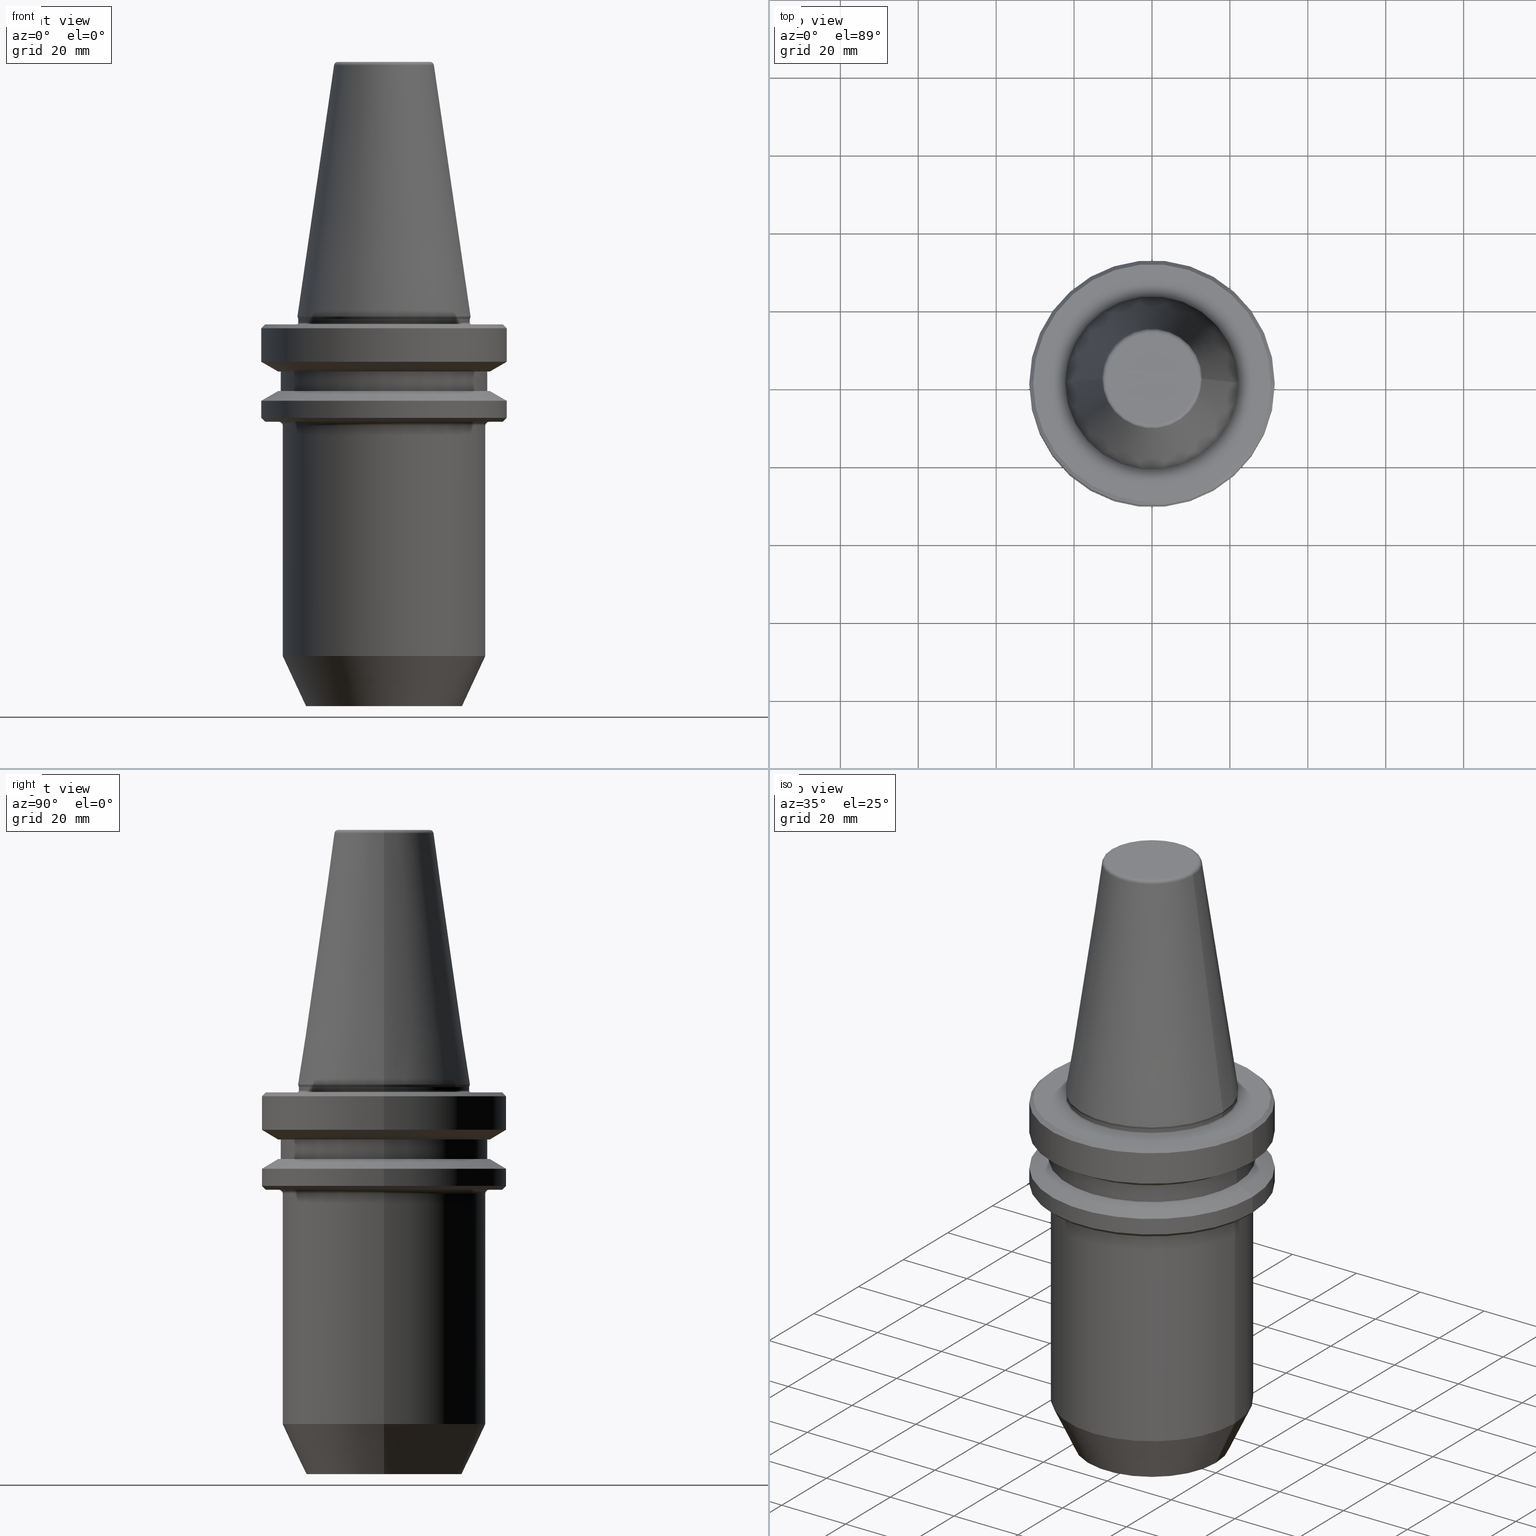
[diagram: canonical four-view strip — front | top / right | iso, engineering-drawing reading convention]
A machine part, canonical four-view strip (front | top / right | iso — engineering-drawing reading convention). The complete STEP part file that produces these views, byte-faithful:
ISO-10303-21;
HEADER;
FILE_DESCRIPTION (( 'STEP AP203' ),
    '1' );
FILE_NAME ('BT40 WE20 100 AD-6.3G15000 SL.STEP',
    '2019-05-22T09:20:08',
    ( '' ),
    ( '' ),
    'SwSTEP 2.0',
    'SolidWorks 2014',
    '' );
FILE_SCHEMA (( 'CONFIG_CONTROL_DESIGN' ));
ENDSEC;

DATA;
#1 = CC_DESIGN_APPROVAL ( #764, ( #634 ) ) ;
#2 = CARTESIAN_POINT ( 'NONE',  ( 22.22499999999971700, 2.721777511104957700E-015, 0.6887132116596417200 ) ) ;
#3 = CARTESIAN_POINT ( 'NONE',  ( 0.0000000000000000000, 0.0000000000000000000, -5.551115123125782700E-014 ) ) ;
#4 = ORIENTED_EDGE ( 'NONE', *, *, #472, .F. ) ;
#5 = EDGE_CURVE ( 'NONE', #198, #689, #654, .T. ) ;
#6 = DATE_AND_TIME ( #404, #740 ) ;
#7 = AXIS2_PLACEMENT_3D ( 'NONE', #564, #289, #995 ) ;
#8 = CARTESIAN_POINT ( 'NONE',  ( 31.49999999999986100, 3.857637417314145300E-015, -2.311286788340083400 ) ) ;
#9 = CIRCLE ( 'NONE', #11, 21.99999999999979700 ) ;
#10 = EDGE_LOOP ( 'NONE', ( #211, #585, #394, #164 ) ) ;
#11 = AXIS2_PLACEMENT_3D ( 'NONE', #714, #321, #1041 ) ;
#12 = VECTOR ( 'NONE', #717, 1000.000000000000000 ) ;
#13 = EDGE_CURVE ( 'NONE', #212, #180, #187, .T. ) ;
#14 = EDGE_CURVE ( 'NONE', #326, #196, #90, .T. ) ;
#15 = CIRCLE ( 'NONE', #495, 30.49999999999986100 ) ;
#16 = PRODUCT ( 'BT40 WE20 100 AD-6.3G15000 SL', 'BT40 WE20 100 AD-6.3G15000 SL', '', ( #756 ) ) ;
#17 = VERTEX_POINT ( 'NONE', #449 ) ;
#18 = VERTEX_POINT ( 'NONE', #568 ) ;
#19 = EDGE_CURVE ( 'NONE', #262, #286, #115, .T. ) ;
#20 = ADVANCED_FACE ( 'NONE', ( #580 ), #70, .T. ) ;
#21 = VERTEX_POINT ( 'NONE', #684 ) ;
#22 = ORIENTED_EDGE ( 'NONE', *, *, #954, .T. ) ;
#23 = DIRECTION ( 'NONE',  ( 1.000000000000000000, 0.0000000000000000000, 0.0000000000000000000 ) ) ;
#24 = EDGE_CURVE ( 'NONE', #174, #168, #705, .T. ) ;
#25 = DIRECTION ( 'NONE',  ( 1.000000000000000000, 0.0000000000000000000, 0.0000000000000000000 ) ) ;
#26 = LINE ( 'NONE', #313, #743 ) ;
#27 = DIRECTION ( 'NONE',  ( -0.0000000000000000000, -0.0000000000000000000, 1.000000000000000000 ) ) ;
#28 = VECTOR ( 'NONE', #930, 1000.000000000000000 ) ;
#29 = DIRECTION ( 'NONE',  ( -0.0000000000000000000, -0.0000000000000000000, 1.000000000000000000 ) ) ;
#30 = CIRCLE ( 'NONE', #275, 0.4000000000001126500 ) ;
#31 = EDGE_CURVE ( 'NONE', #310, #280, #1049, .T. ) ;
#32 = ORIENTED_EDGE ( 'NONE', *, *, #148, .T. ) ;
#33 = DIRECTION ( 'NONE',  ( 1.000000000000000000, 0.0000000000000000000, 0.0000000000000000000 ) ) ;
#34 = ORIENTED_EDGE ( 'NONE', *, *, #201, .F. ) ;
#35 = FACE_OUTER_BOUND ( 'NONE', #900, .T. ) ;
#36 = ORIENTED_EDGE ( 'NONE', *, *, #484, .T. ) ;
#37 = AXIS2_PLACEMENT_3D ( 'NONE', #872, #119, #48 ) ;
#38 = CARTESIAN_POINT ( 'NONE',  ( 0.0000000000000000000, 0.0000000000000000000, -2.311286788340083400 ) ) ;
#39 = AXIS2_PLACEMENT_3D ( 'NONE', #912, #949, #1048 ) ;
#40 = DIRECTION ( 'NONE',  ( -0.0000000000000000000, -0.0000000000000000000, 1.000000000000000000 ) ) ;
#41 = CARTESIAN_POINT ( 'NONE',  ( 31.49999999999986100, 0.0000000000000000000, -2.311286788340083400 ) ) ;
#42 = AXIS2_PLACEMENT_3D ( 'NONE', #355, #324, #312 ) ;
#43 = FACE_OUTER_BOUND ( 'NONE', #319, .T. ) ;
#44 = AXIS2_PLACEMENT_3D ( 'NONE', #271, #245, #219 ) ;
#45 = FACE_OUTER_BOUND ( 'NONE', #824, .T. ) ;
#46 = DIRECTION ( 'NONE',  ( 1.000000000000000000, 0.0000000000000000000, 0.0000000000000000000 ) ) ;
#47 = CARTESIAN_POINT ( 'NONE',  ( 0.0000000000000000000, 0.0000000000000000000, -86.44424526528280200 ) ) ;
#48 = DIRECTION ( 'NONE',  ( 1.000000000000000000, 0.0000000000000000000, 0.0000000000000000000 ) ) ;
#49 = ORIENTED_EDGE ( 'NONE', *, *, #563, .T. ) ;
#50 = CARTESIAN_POINT ( 'NONE',  ( 27.16962701892278200, 0.0000000000000000000, -13.41128678834002700 ) ) ;
#51 = ORIENTED_EDGE ( 'NONE', *, *, #716, .T. ) ;
#52 = CARTESIAN_POINT ( 'NONE',  ( 0.0000000000000000000, 0.0000000000000000000, -1.311286788340082500 ) ) ;
#53 = DIRECTION ( 'NONE',  ( 1.000000000000000000, 0.0000000000000000000, 0.0000000000000000000 ) ) ;
#54 = DIRECTION ( 'NONE',  ( 1.000000000000000000, 0.0000000000000000000, 0.0000000000000000000 ) ) ;
#55 = DIRECTION ( 'NONE',  ( -0.0000000000000000000, -0.0000000000000000000, 1.000000000000000000 ) ) ;
#56 = APPLICATION_CONTEXT ( 'configuration controlled 3d designs of mechanical parts and assemblies' ) ;
#57 = PRODUCT_DEFINITION_SHAPE ( 'NONE', 'NONE',  #634 ) ;
#58 = ADVANCED_FACE ( 'NONE', ( #99 ), #330, .F. ) ;
#59 = ADVANCED_FACE ( 'NONE', ( #35, #160 ), #999, .F. ) ;
#60 = DIRECTION ( 'NONE',  ( -0.0000000000000000000, -0.0000000000000000000, 1.000000000000000000 ) ) ;
#61 = CYLINDRICAL_SURFACE ( 'NONE', #485, 21.99999999999981200 ) ;
#62 = APPROVAL_STATUS ( 'not_yet_approved' ) ;
#63 = DIRECTION ( 'NONE',  ( -0.0000000000000000000, -0.0000000000000000000, 1.000000000000000000 ) ) ;
#64 = LINE ( 'NONE', #2, #65 ) ;
#65 = VECTOR ( 'NONE', #746, 999.9999999999998900 ) ;
#66 = CC_DESIGN_PERSON_AND_ORGANIZATION_ASSIGNMENT ( #799, #296, ( #16 ) ) ;
#67 = VECTOR ( 'NONE', #1012, 1000.000000000000000 ) ;
#68 = DIRECTION ( 'NONE',  ( 0.8660254037844400400, 1.060575238724908600E-016, -0.4999999999999976100 ) ) ;
#69 = FACE_OUTER_BOUND ( 'NONE', #722, .T. ) ;
#70 = CONICAL_SURFACE ( 'NONE', #982, 22.02412295168547700, 0.3490658503993923600 ) ;
#71 = EDGE_CURVE ( 'NONE', #645, #17, #30, .T. ) ;
#72 = DIRECTION ( 'NONE',  ( -0.0000000000000000000, -0.0000000000000000000, 1.000000000000000000 ) ) ;
#73 = AXIS2_PLACEMENT_3D ( 'NONE', #813, #466, #25 ) ;
#74 = CARTESIAN_POINT ( 'NONE',  ( 0.0000000000000000000, 0.0000000000000000000, 0.6887132116596417200 ) ) ;
#75 = CARTESIAN_POINT ( 'NONE',  ( -21.99999999999981200, 2.694222958124154300E-015, 82.74845858742440900 ) ) ;
#76 = AXIS2_PLACEMENT_3D ( 'NONE', #307, #471, #732 ) ;
#77 = TOROIDAL_SURFACE ( 'NONE', #620, 22.49999999999985400, 0.5000000000000282000 ) ;
#78 = EDGE_CURVE ( 'NONE', #560, #295, #113, .T. ) ;
#79 = ORIENTED_EDGE ( 'NONE', *, *, #789, .F. ) ;
#80 = DIRECTION ( 'NONE',  ( 1.000000000000000000, 0.0000000000000000000, 0.0000000000000000000 ) ) ;
#81 = ORIENTED_EDGE ( 'NONE', *, *, #153, .F. ) ;
#82 = CARTESIAN_POINT ( 'NONE',  ( 21.99999999999981200, 0.0000000000000000000, 82.74845858742440900 ) ) ;
#83 = CIRCLE ( 'NONE', #512, 27.00000000000000000 ) ;
#84 = DIRECTION ( 'NONE',  ( -0.0000000000000000000, -0.0000000000000000000, 1.000000000000000000 ) ) ;
#85 = CC_DESIGN_DATE_AND_TIME_ASSIGNMENT ( #6, #305, ( #482 ) ) ;
#86 = ORIENTED_EDGE ( 'NONE', *, *, #451, .F. ) ;
#87 = EDGE_CURVE ( 'NONE', #244, #645, #638, .T. ) ;
#88 = TOROIDAL_SURFACE ( 'NONE', #838, 27.00000000000000000, 1.000000000000002700 ) ;
#89 = CONICAL_SURFACE ( 'NONE', #365, 31.50000000000019500, 1.047197551196600500 ) ;
#90 = CIRCLE ( 'NONE', #859, 26.00000000000000000 ) ;
#91 = CIRCLE ( 'NONE', #781, 27.16962701892278200 ) ;
#92 = EDGE_LOOP ( 'NONE', ( #452, #536, #51, #526 ) ) ;
#93 = CARTESIAN_POINT ( 'NONE',  ( 0.0000000000000000000, 0.0000000000000000000, 82.74845858742440900 ) ) ;
#94 = FACE_OUTER_BOUND ( 'NONE', #437, .T. ) ;
#95 = DIRECTION ( 'NONE',  ( -0.0000000000000000000, -0.0000000000000000000, 1.000000000000000000 ) ) ;
#96 = CARTESIAN_POINT ( 'NONE',  ( 26.00000000000000000, 0.0000000000000000000, -27.31128678844368800 ) ) ;
#97 = LINE ( 'NONE', #539, #12 ) ;
#98 = CARTESIAN_POINT ( 'NONE',  ( -22.39999999999986400, 2.743208830090054500E-015, -5.551115123125782700E-014 ) ) ;
#99 = FACE_OUTER_BOUND ( 'NONE', #377, .T. ) ;
#100 = AXIS2_PLACEMENT_3D ( 'NONE', #172, #966, #502 ) ;
#101 = EDGE_LOOP ( 'NONE', ( #22, #657 ) ) ;
#102 = FACE_OUTER_BOUND ( 'NONE', #359, .T. ) ;
#103 = DIRECTION ( 'NONE',  ( -0.0000000000000000000, -0.0000000000000000000, 1.000000000000000000 ) ) ;
#104 = ORIENTED_EDGE ( 'NONE', *, *, #867, .F. ) ;
#105 = ADVANCED_FACE ( 'NONE', ( #197 ), #681, .T. ) ;
#106 = EDGE_CURVE ( 'NONE', #309, #524, #690, .T. ) ;
#107 = CARTESIAN_POINT ( 'NONE',  ( -22.49999999999985400, 2.755455298081526600E-015, -1.311286788340096300 ) ) ;
#108 = CARTESIAN_POINT ( 'NONE',  ( -11.82266927716801800, 1.508450817090320000E-015, 66.08871321166032000 ) ) ;
#109 = EDGE_CURVE ( 'NONE', #889, #18, #659, .T. ) ;
#110 = DIRECTION ( 'NONE',  ( 1.000000000000000000, 0.0000000000000000000, 0.0000000000000000000 ) ) ;
#111 = ORIENTED_EDGE ( 'NONE', *, *, #230, .T. ) ;
#112 = VECTOR ( 'NONE', #548, 1000.000000000000000 ) ;
#113 = CIRCLE ( 'NONE', #229, 0.5000000000000282000 ) ;
#114 = DIRECTION ( 'NONE',  ( -1.000000000000000000, 0.0000000000000000000, 0.0000000000000000000 ) ) ;
#115 = CIRCLE ( 'NONE', #914, 27.16962701892278200 ) ;
#116 = VERTEX_POINT ( 'NONE', #285 ) ;
#117 = ORIENTED_EDGE ( 'NONE', *, *, #24, .F. ) ;
#118 = FACE_OUTER_BOUND ( 'NONE', #573, .T. ) ;
#119 = DIRECTION ( 'NONE',  ( -0.0000000000000000000, -0.0000000000000000000, 1.000000000000000000 ) ) ;
#120 = FACE_OUTER_BOUND ( 'NONE', #249, .T. ) ;
#121 = AXIS2_PLACEMENT_3D ( 'NONE', #74, #934, #504 ) ;
#122 = EDGE_CURVE ( 'NONE', #645, #244, #662, .T. ) ;
#123 = DIRECTION ( 'NONE',  ( 1.000000000000000000, 0.0000000000000000000, 0.0000000000000000000 ) ) ;
#124 = AXIS2_PLACEMENT_3D ( 'NONE', #421, #341, #885 ) ;
#125 = VERTEX_POINT ( 'NONE', #167 ) ;
#126 = ORIENTED_EDGE ( 'NONE', *, *, #1024, .T. ) ;
#127 = EDGE_CURVE ( 'NONE', #589, #125, #693, .T. ) ;
#128 = DIRECTION ( 'NONE',  ( -1.000000000000000000, 0.0000000000000000000, -0.0000000000000000000 ) ) ;
#129 = ORIENTED_EDGE ( 'NONE', *, *, #19, .F. ) ;
#130 = CARTESIAN_POINT ( 'NONE',  ( 22.39999999999986400, 0.0000000000000000000, -5.551115123125782700E-014 ) ) ;
#131 = ORIENTED_EDGE ( 'NONE', *, *, #242, .F. ) ;
#132 = DIRECTION ( 'NONE',  ( -0.7071067811865474600, 8.659560562354931600E-017, 0.7071067811865475700 ) ) ;
#133 = CC_DESIGN_APPROVAL ( #382, ( #482 ) ) ;
#134 = DIRECTION ( 'NONE',  ( 1.000000000000000000, 0.0000000000000000000, 0.0000000000000000000 ) ) ;
#135 = CARTESIAN_POINT ( 'NONE',  ( 0.0000000000000000000, 0.0000000000000000000, -26.31128678844368800 ) ) ;
#136 = CARTESIAN_POINT ( 'NONE',  ( 22.49999999999985400, 0.0000000000000000000, -1.311286788340096300 ) ) ;
#137 = PRODUCT_DEFINITION_FORMATION_WITH_SPECIFIED_SOURCE ( 'ANY', '', #16, .NOT_KNOWN. ) ;
#138 = CARTESIAN_POINT ( 'NONE',  ( 0.0000000000000000000, 26.50000000000007800, -18.41128678844344800 ) ) ;
#139 = DIRECTION ( 'NONE',  ( -0.0000000000000000000, -0.0000000000000000000, 1.000000000000000000 ) ) ;
#140 = ADVANCED_FACE ( 'NONE', ( #855 ), #808, .T. ) ;
#141 = ADVANCED_FACE ( 'NONE', ( #636 ), #908, .T. ) ;
#142 = PERSON ( 'UNSPECIFIED', 'UNSPECIFIED', 'UNSPECIFIED', ('UNSPECIFIED'), ('UNSPECIFIED'), ('UNSPECIFIED') ) ;
#143 = EDGE_CURVE ( 'NONE', #295, #501, #907, .T. ) ;
#144 = ORIENTED_EDGE ( 'NONE', *, *, #87, .T. ) ;
#145 = PERSON_AND_ORGANIZATION_ROLE ( 'creator' ) ;
#146 = DIRECTION ( 'NONE',  ( -0.0000000000000000000, -0.0000000000000000000, 1.000000000000000000 ) ) ;
#147 = DIRECTION ( 'NONE',  ( -0.0000000000000000000, -0.0000000000000000000, 1.000000000000000000 ) ) ;
#148 = EDGE_CURVE ( 'NONE', #818, #152, #658, .T. ) ;
#149 = DIRECTION ( 'NONE',  ( 1.000000000000000000, 0.0000000000000000000, 0.0000000000000000000 ) ) ;
#150 = AXIS2_PLACEMENT_3D ( 'NONE', #532, #1042, #447 ) ;
#151 = EDGE_LOOP ( 'NONE', ( #32, #386, #243, #1023 ) ) ;
#152 = VERTEX_POINT ( 'NONE', #646 ) ;
#153 = EDGE_CURVE ( 'NONE', #125, #280, #903, .T. ) ;
#154 = CARTESIAN_POINT ( 'NONE',  ( 0.0000000000000000000, 0.0000000000000000000, -5.551115123125782700E-014 ) ) ;
#155 = DIRECTION ( 'NONE',  ( 1.000000000000000000, 0.0000000000000000000, 0.0000000000000000000 ) ) ;
#156 = ORIENTED_EDGE ( 'NONE', *, *, #106, .F. ) ;
#157 = DIRECTION ( 'NONE',  ( 1.000000000000000000, 0.0000000000000000000, 0.0000000000000000000 ) ) ;
#158 = ORIENTED_EDGE ( 'NONE', *, *, #242, .T. ) ;
#159 = EDGE_LOOP ( 'NONE', ( #597, #301, #556, #918 ) ) ;
#160 = FACE_BOUND ( 'NONE', #317, .T. ) ;
#161 = ORIENTED_EDGE ( 'NONE', *, *, #299, .T. ) ;
#162 = VERTEX_POINT ( 'NONE', #655 ) ;
#163 = DIRECTION ( 'NONE',  ( 1.000000000000000000, 0.0000000000000000000, 0.0000000000000000000 ) ) ;
#164 = ORIENTED_EDGE ( 'NONE', *, *, #644, .F. ) ;
#165 = DIRECTION ( 'NONE',  ( -0.0000000000000000000, -0.0000000000000000000, 1.000000000000000000 ) ) ;
#166 = AXIS2_PLACEMENT_3D ( 'NONE', #522, #281, #128 ) ;
#167 = CARTESIAN_POINT ( 'NONE',  ( -26.00000000000000000, 3.184081677783118200E-015, -27.31128678844368800 ) ) ;
#168 = VERTEX_POINT ( 'NONE', #566 ) ;
#169 = EDGE_CURVE ( 'NONE', #21, #889, #298, .T. ) ;
#170 = ORIENTED_EDGE ( 'NONE', *, *, #520, .T. ) ;
#171 = AXIS2_PLACEMENT_3D ( 'NONE', #595, #720, #46 ) ;
#172 = CARTESIAN_POINT ( 'NONE',  ( 0.0000000000000000000, 0.0000000000000000000, 0.6887132116596417200 ) ) ;
#173 = ORIENTED_EDGE ( 'NONE', *, *, #954, .F. ) ;
#174 = VERTEX_POINT ( 'NONE', #263 ) ;
#175 = EDGE_LOOP ( 'NONE', ( #946, #86, #762, #257 ) ) ;
#176 = EDGE_CURVE ( 'NONE', #560, #17, #882, .T. ) ;
#177 = DIRECTION ( 'NONE',  ( -0.0000000000000000000, -0.0000000000000000000, 1.000000000000000000 ) ) ;
#178 = EDGE_CURVE ( 'NONE', #326, #280, #490, .T. ) ;
#179 = ADVANCED_FACE ( 'NONE', ( #468 ), #725, .F. ) ;
#180 = VERTEX_POINT ( 'NONE', #534 ) ;
#181 = DIRECTION ( 'NONE',  ( -0.0000000000000000000, -0.0000000000000000000, 1.000000000000000000 ) ) ;
#182 = EDGE_LOOP ( 'NONE', ( #920, #391 ) ) ;
#183 = ORIENTED_EDGE ( 'NONE', *, *, #387, .T. ) ;
#184 = AXIS2_PLACEMENT_3D ( 'NONE', #514, #941, #931 ) ;
#185 = ORIENTED_EDGE ( 'NONE', *, *, #1013, .T. ) ;
#186 = DIRECTION ( 'NONE',  ( 1.000000000000000000, 0.0000000000000000000, 0.0000000000000000000 ) ) ;
#187 = CIRCLE ( 'NONE', #801, 31.50000000000019500 ) ;
#188 = CARTESIAN_POINT ( 'NONE',  ( 22.49999999999985400, 0.0000000000000000000, -0.8112867883400820500 ) ) ;
#189 = EDGE_LOOP ( 'NONE', ( #34, #557, #811, #463 ) ) ;
#190 = AXIS2_PLACEMENT_3D ( 'NONE', #98, #915, #380 ) ;
#191 = CARTESIAN_POINT ( 'NONE',  ( -26.00000000000000000, 3.184081677783118200E-015, 82.74845858742440900 ) ) ;
#192 = DIRECTION ( 'NONE',  ( 1.000000000000000000, 0.0000000000000000000, 0.0000000000000000000 ) ) ;
#193 = ORIENTED_EDGE ( 'NONE', *, *, #1031, .F. ) ;
#194 = DIRECTION ( 'NONE',  ( -0.0000000000000000000, -0.0000000000000000000, 1.000000000000000000 ) ) ;
#195 = ORIENTED_EDGE ( 'NONE', *, *, #656, .F. ) ;
#196 = VERTEX_POINT ( 'NONE', #826 ) ;
#197 = FACE_OUTER_BOUND ( 'NONE', #639, .T. ) ;
#198 = VERTEX_POINT ( 'NONE', #647 ) ;
#199 = ORIENTED_EDGE ( 'NONE', *, *, #356, .F. ) ;
#200 = ORIENTED_EDGE ( 'NONE', *, *, #401, .F. ) ;
#201 = EDGE_CURVE ( 'NONE', #198, #21, #649, .T. ) ;
#202 = DIRECTION ( 'NONE',  ( -0.0000000000000000000, -0.0000000000000000000, 1.000000000000000000 ) ) ;
#203 = AXIS2_PLACEMENT_3D ( 'NONE', #977, #239, #470 ) ;
#204 = DIRECTION ( 'NONE',  ( -1.000000000000000000, 1.224646799147352700E-016, 0.0000000000000000000 ) ) ;
#205 = LINE ( 'NONE', #988, #990 ) ;
#206 = CARTESIAN_POINT ( 'NONE',  ( 0.0000000000000000000, 0.0000000000000000000, -99.31128678834039600 ) ) ;
#207 = CARTESIAN_POINT ( 'NONE',  ( -30.49999999999997200, 3.796405077356805400E-015, -26.31128678844368800 ) ) ;
#208 = ORIENTED_EDGE ( 'NONE', *, *, #576, .F. ) ;
#209 = ORIENTED_EDGE ( 'NONE', *, *, #520, .F. ) ;
#210 = EDGE_CURVE ( 'NONE', #345, #116, #721, .T. ) ;
#211 = ORIENTED_EDGE ( 'NONE', *, *, #562, .F. ) ;
#212 = VERTEX_POINT ( 'NONE', #542 ) ;
#213 = DIRECTION ( 'NONE',  ( 0.0000000000000000000, -1.000000000000000000, 0.0000000000000000000 ) ) ;
#214 = ORIENTED_EDGE ( 'NONE', *, *, #210, .F. ) ;
#215 = ADVANCED_FACE ( 'NONE', ( #783 ), #627, .T. ) ;
#216 = ADVANCED_FACE ( 'NONE', ( #642, #782 ), #848, .F. ) ;
#217 = APPLICATION_PROTOCOL_DEFINITION ( 'international standard', 'config_control_design', 1994, #56 ) ;
#218 = DIRECTION ( 'NONE',  ( 1.000000000000000000, 0.0000000000000000000, 0.0000000000000000000 ) ) ;
#219 = DIRECTION ( 'NONE',  ( -1.000000000000000000, 1.224646799147353900E-016, 0.0000000000000000000 ) ) ;
#220 = SECURITY_CLASSIFICATION_LEVEL ( 'unclassified' ) ;
#221 = DIRECTION ( 'NONE',  ( 1.000000000000000000, 0.0000000000000000000, 0.0000000000000000000 ) ) ;
#222 = ORIENTED_EDGE ( 'NONE', *, *, #279, .F. ) ;
#223 = CONICAL_SURFACE ( 'NONE', #630, 31.49999999999986100, 0.7853981633974482800 ) ;
#224 = DIRECTION ( 'NONE',  ( -0.0000000000000000000, -0.0000000000000000000, 1.000000000000000000 ) ) ;
#225 = CIRCLE ( 'NONE', #583, 31.49999999999986100 ) ;
#226 = ORIENTED_EDGE ( 'NONE', *, *, #13, .T. ) ;
#227 = EDGE_CURVE ( 'NONE', #414, #326, #626, .T. ) ;
#228 = ORIENTED_EDGE ( 'NONE', *, *, #989, .F. ) ;
#229 = AXIS2_PLACEMENT_3D ( 'NONE', #188, #957, #904 ) ;
#230 = EDGE_CURVE ( 'NONE', #428, #196, #752, .T. ) ;
#231 = CARTESIAN_POINT ( 'NONE',  ( 0.0000000000000000000, 0.0000000000000000000, -18.41128678844344800 ) ) ;
#232 = DIRECTION ( 'NONE',  ( -0.0000000000000000000, -0.0000000000000000000, 1.000000000000000000 ) ) ;
#233 = CYLINDRICAL_SURFACE ( 'NONE', #540, 21.99999999999981200 ) ;
#234 = ORIENTED_EDGE ( 'NONE', *, *, #869, .F. ) ;
#235 = EDGE_LOOP ( 'NONE', ( #49, #353 ) ) ;
#236 = CARTESIAN_POINT ( 'NONE',  ( 0.0000000000000000000, 0.0000000000000000000, -10.91114478202370800 ) ) ;
#237 = APPROVAL_DATE_TIME ( #795, #382 ) ;
#238 = ORIENTED_EDGE ( 'NONE', *, *, #251, .T. ) ;
#239 = DIRECTION ( 'NONE',  ( -0.0000000000000000000, -0.0000000000000000000, 1.000000000000000000 ) ) ;
#240 = DIRECTION ( 'NONE',  ( 0.0000000000000000000, 0.0000000000000000000, -1.000000000000000000 ) ) ;
#241 = CARTESIAN_POINT ( 'NONE',  ( 0.0000000000000000000, 0.0000000000000000000, -26.31128678844368800 ) ) ;
#242 = EDGE_CURVE ( 'NONE', #524, #162, #870, .T. ) ;
#243 = ORIENTED_EDGE ( 'NONE', *, *, #387, .F. ) ;
#244 = VERTEX_POINT ( 'NONE', #473 ) ;
#245 = DIRECTION ( 'NONE',  ( 1.224646799147353200E-016, 1.000000000000000000, 0.0000000000000000000 ) ) ;
#246 = EDGE_LOOP ( 'NONE', ( #104, #874, #433, #812 ) ) ;
#247 = CARTESIAN_POINT ( 'NONE',  ( 0.0000000000000000000, 0.0000000000000000000, 82.74845858742440900 ) ) ;
#248 = TOROIDAL_SURFACE ( 'NONE', #411, 27.00000000000000000, 1.000000000000002700 ) ;
#249 = EDGE_LOOP ( 'NONE', ( #570, #750, #558, #1019 ) ) ;
#250 = FACE_OUTER_BOUND ( 'NONE', #92, .T. ) ;
#251 = EDGE_CURVE ( 'NONE', #331, #475, #718, .T. ) ;
#252 = DIRECTION ( 'NONE',  ( 0.0000000000000000000, 0.0000000000000000000, -1.000000000000000000 ) ) ;
#253 = AXIS2_PLACEMENT_3D ( 'NONE', #715, #315, #123 ) ;
#254 = CC_DESIGN_APPROVAL ( #921, ( #137 ) ) ;
#255 = EDGE_CURVE ( 'NONE', #475, #331, #881, .T. ) ;
#256 = FACE_OUTER_BOUND ( 'NONE', #409, .T. ) ;
#257 = ORIENTED_EDGE ( 'NONE', *, *, #109, .T. ) ;
#258 = AXIS2_PLACEMENT_3D ( 'NONE', #857, #832, #787 ) ;
#259 = ADVANCED_FACE ( 'NONE', ( #453 ), #89, .T. ) ;
#260 = FACE_OUTER_BOUND ( 'NONE', #513, .T. ) ;
#261 = ORIENTED_EDGE ( 'NONE', *, *, #563, .F. ) ;
#262 = VERTEX_POINT ( 'NONE', #549 ) ;
#263 = CARTESIAN_POINT ( 'NONE',  ( -26.50000000000007800, 3.245314017740495600E-015, -18.41128678844344800 ) ) ;
#264 = AXIS2_PLACEMENT_3D ( 'NONE', #688, #561, #865 ) ;
#265 = DIRECTION ( 'NONE',  ( -0.8660254037844400400, 0.0000000000000000000, -0.4999999999999976100 ) ) ;
#266 = DIRECTION ( 'NONE',  ( 0.0000000000000000000, 0.0000000000000000000, -1.000000000000000000 ) ) ;
#267 = FACE_OUTER_BOUND ( 'NONE', #328, .T. ) ;
#268 = DESIGN_CONTEXT ( 'detailed design', #847, 'design' ) ;
#269 = CARTESIAN_POINT ( 'NONE',  ( 0.0000000000000000000, 0.0000000000000000000, -25.31128678844346400 ) ) ;
#270 = ORIENTED_EDGE ( 'NONE', *, *, #78, .F. ) ;
#271 = CARTESIAN_POINT ( 'NONE',  ( -11.82266927716790800, 1.447859408766143000E-015, 65.08871321166032000 ) ) ;
#272 = ORIENTED_EDGE ( 'NONE', *, *, #484, .F. ) ;
#273 = EDGE_CURVE ( 'NONE', #682, #876, #352, .T. ) ;
#274 = CARTESIAN_POINT ( 'NONE',  ( 0.0000000000000000000, 0.0000000000000000000, -1.311286788340082500 ) ) ;
#275 = AXIS2_PLACEMENT_3D ( 'NONE', #130, #828, #240 ) ;
#276 = AXIS2_PLACEMENT_3D ( 'NONE', #135, #84, #767 ) ;
#277 = DIRECTION ( 'NONE',  ( 1.224646799147353200E-016, 1.000000000000000000, 0.0000000000000000000 ) ) ;
#278 = DIRECTION ( 'NONE',  ( -0.0000000000000000000, -0.0000000000000000000, 1.000000000000000000 ) ) ;
#279 = EDGE_CURVE ( 'NONE', #589, #310, #624, .T. ) ;
#280 = VERTEX_POINT ( 'NONE', #96 ) ;
#281 = DIRECTION ( 'NONE',  ( 0.0000000000000000000, 0.0000000000000000000, -1.000000000000000000 ) ) ;
#282 = TOROIDAL_SURFACE ( 'NONE', #264, 11.82266927716790800, 1.000000000000029100 ) ;
#283 = EDGE_CURVE ( 'NONE', #152, #162, #864, .T. ) ;
#284 = DIRECTION ( 'NONE',  ( 1.000000000000000000, 0.0000000000000000000, 0.0000000000000000000 ) ) ;
#285 = CARTESIAN_POINT ( 'NONE',  ( 31.50000000000019500, 0.0000000000000000000, -25.31128678844346400 ) ) ;
#286 = VERTEX_POINT ( 'NONE', #50 ) ;
#287 = ORIENTED_EDGE ( 'NONE', *, *, #273, .T. ) ;
#288 = DIRECTION ( 'NONE',  ( 1.000000000000000000, 0.0000000000000000000, 0.0000000000000000000 ) ) ;
#289 = DIRECTION ( 'NONE',  ( -0.0000000000000000000, -0.0000000000000000000, 1.000000000000000000 ) ) ;
#290 = DIRECTION ( 'NONE',  ( -0.0000000000000000000, -0.0000000000000000000, 1.000000000000000000 ) ) ;
#291 = CARTESIAN_POINT ( 'NONE',  ( 0.0000000000000000000, 0.0000000000000000000, -99.31128678834039600 ) ) ;
#292 = DIRECTION ( 'NONE',  ( -0.0000000000000000000, -0.0000000000000000000, 1.000000000000000000 ) ) ;
#293 = AXIS2_PLACEMENT_3D ( 'NONE', #427, #72, #443 ) ;
#294 = DIRECTION ( 'NONE',  ( -0.0000000000000000000, -0.0000000000000000000, 1.000000000000000000 ) ) ;
#295 = VERTEX_POINT ( 'NONE', #136 ) ;
#296 = PERSON_AND_ORGANIZATION_ROLE ( 'design_owner' ) ;
#297 = ORIENTED_EDGE ( 'NONE', *, *, #299, .F. ) ;
#298 = LINE ( 'NONE', #363, #385 ) ;
#299 = EDGE_CURVE ( 'NONE', #565, #17, #435, .T. ) ;
#300 = ADVANCED_FACE ( 'NONE', ( #537 ), #481, .T. ) ;
#301 = ORIENTED_EDGE ( 'NONE', *, *, #335, .F. ) ;
#302 = CARTESIAN_POINT ( 'NONE',  ( 0.0000000000000000000, 0.0000000000000000000, -2.311286788340083400 ) ) ;
#303 = CARTESIAN_POINT ( 'NONE',  ( 0.0000000000000000000, 0.0000000000000000000, -0.8112867883400820500 ) ) ;
#304 = ADVANCED_FACE ( 'NONE', ( #306 ), #77, .F. ) ;
#305 = DATE_TIME_ROLE ( 'classification_date' ) ;
#306 = FACE_OUTER_BOUND ( 'NONE', #159, .T. ) ;
#307 = CARTESIAN_POINT ( 'NONE',  ( 0.0000000000000000000, 0.0000000000000000000, -5.551115123125782700E-014 ) ) ;
#308 = LINE ( 'NONE', #8, #112 ) ;
#309 = VERTEX_POINT ( 'NONE', #555 ) ;
#310 = VERTEX_POINT ( 'NONE', #792 ) ;
#311 = DIRECTION ( 'NONE',  ( 1.000000000000000000, 0.0000000000000000000, 0.0000000000000000000 ) ) ;
#312 = DIRECTION ( 'NONE',  ( 1.000000000000000000, 0.0000000000000000000, 0.0000000000000000000 ) ) ;
#313 = CARTESIAN_POINT ( 'NONE',  ( 22.02412295168547700, 0.0000000000000000000, 0.1368080573304758500 ) ) ;
#314 = DIRECTION ( 'NONE',  ( 1.000000000000000000, 0.0000000000000000000, 0.0000000000000000000 ) ) ;
#315 = DIRECTION ( 'NONE',  ( -0.0000000000000000000, -0.0000000000000000000, 1.000000000000000000 ) ) ;
#316 = DIRECTION ( 'NONE',  ( 1.000000000000000000, 0.0000000000000000000, 0.0000000000000000000 ) ) ;
#317 = EDGE_LOOP ( 'NONE', ( #922, #238 ) ) ;
#318 = AXIS2_PLACEMENT_3D ( 'NONE', #503, #897, #629 ) ;
#319 = EDGE_LOOP ( 'NONE', ( #456, #593, #375, #731 ) ) ;
#320 = DIRECTION ( 'NONE',  ( -0.0000000000000000000, -0.0000000000000000000, 1.000000000000000000 ) ) ;
#321 = DIRECTION ( 'NONE',  ( -0.0000000000000000000, -0.0000000000000000000, 1.000000000000000000 ) ) ;
#322 = CARTESIAN_POINT ( 'NONE',  ( 0.0000000000000000000, 0.0000000000000000000, 66.08871321166032000 ) ) ;
#323 = EDGE_CURVE ( 'NONE', #168, #174, #450, .T. ) ;
#324 = DIRECTION ( 'NONE',  ( -0.0000000000000000000, -0.0000000000000000000, 1.000000000000000000 ) ) ;
#325 = VERTEX_POINT ( 'NONE', #207 ) ;
#326 = VERTEX_POINT ( 'NONE', #462 ) ;
#327 = ORIENTED_EDGE ( 'NONE', *, *, #230, .F. ) ;
#328 = EDGE_LOOP ( 'NONE', ( #406, #836, #261, #367 ) ) ;
#329 = DIRECTION ( 'NONE',  ( -0.0000000000000000000, -0.0000000000000000000, 1.000000000000000000 ) ) ;
#330 = TOROIDAL_SURFACE ( 'NONE', #713, 22.49999999999985400, 0.5000000000000282000 ) ;
#331 = VERTEX_POINT ( 'NONE', #844 ) ;
#332 = ORIENTED_EDGE ( 'NONE', *, *, #178, .F. ) ;
#333 = ORIENTED_EDGE ( 'NONE', *, *, #153, .T. ) ;
#334 = DIRECTION ( 'NONE',  ( 1.000000000000000000, 0.0000000000000000000, 0.0000000000000000000 ) ) ;
#335 = EDGE_CURVE ( 'NONE', #560, #425, #455, .T. ) ;
#336 = DIRECTION ( 'NONE',  ( 1.000000000000000000, 0.0000000000000000000, 0.0000000000000000000 ) ) ;
#337 = CARTESIAN_POINT ( 'NONE',  ( 0.0000000000000000000, 0.0000000000000000000, 82.74845858742440900 ) ) ;
#338 = AXIS2_PLACEMENT_3D ( 'NONE', #344, #928, #186 ) ;
#339 = COORDINATED_UNIVERSAL_TIME_OFFSET ( 5, 30, .AHEAD. ) ;
#340 = EDGE_CURVE ( 'NONE', #309, #610, #308, .T. ) ;
#341 = DIRECTION ( 'NONE',  ( -0.0000000000000000000, -0.0000000000000000000, 1.000000000000000000 ) ) ;
#342 = ORIENTED_EDGE ( 'NONE', *, *, #948, .T. ) ;
#343 = ADVANCED_FACE ( 'NONE', ( #118 ), #88, .F. ) ;
#344 = CARTESIAN_POINT ( 'NONE',  ( 0.0000000000000000000, 0.0000000000000000000, -13.41128678834002700 ) ) ;
#345 = VERTEX_POINT ( 'NONE', #618 ) ;
#346 = ORIENTED_EDGE ( 'NONE', *, *, #459, .F. ) ;
#347 = AXIS2_PLACEMENT_3D ( 'NONE', #797, #873, #157 ) ;
#348 = ORIENTED_EDGE ( 'NONE', *, *, #127, .F. ) ;
#349 = DIRECTION ( 'NONE',  ( -1.000000000000000000, 0.0000000000000000000, -0.0000000000000000000 ) ) ;
#350 = CIRCLE ( 'NONE', #488, 26.00000000000000000 ) ;
#351 = DIRECTION ( 'NONE',  ( -0.0000000000000000000, -0.0000000000000000000, 1.000000000000000000 ) ) ;
#352 = CIRCLE ( 'NONE', #412, 27.16962701892167300 ) ;
#353 = ORIENTED_EDGE ( 'NONE', *, *, #831, .T. ) ;
#354 = ORIENTED_EDGE ( 'NONE', *, *, #323, .F. ) ;
#355 = CARTESIAN_POINT ( 'NONE',  ( 0.0000000000000000000, 0.0000000000000000000, -25.31128678844346400 ) ) ;
#356 = EDGE_CURVE ( 'NONE', #286, #262, #91, .T. ) ;
#357 = ORIENTED_EDGE ( 'NONE', *, *, #227, .T. ) ;
#358 = ORIENTED_EDGE ( 'NONE', *, *, #323, .T. ) ;
#359 = EDGE_LOOP ( 'NONE', ( #36, #852, #195, #234 ) ) ;
#360 = ORIENTED_EDGE ( 'NONE', *, *, #652, .F. ) ;
#361 = CARTESIAN_POINT ( 'NONE',  ( 31.49999999999986100, 0.0000000000000000000, -10.91114478202370800 ) ) ;
#362 = ORIENTED_EDGE ( 'NONE', *, *, #576, .T. ) ;
#363 = CARTESIAN_POINT ( 'NONE',  ( -22.22499999999971700, 0.0000000000000000000, 0.6887132116596417200 ) ) ;
#364 = AXIS2_PLACEMENT_3D ( 'NONE', #274, #603, #155 ) ;
#365 = AXIS2_PLACEMENT_3D ( 'NONE', #925, #489, #114 ) ;
#366 = PLANE ( 'NONE',  #890 ) ;
#367 = ORIENTED_EDGE ( 'NONE', *, *, #5, .F. ) ;
#368 = FACE_OUTER_BOUND ( 'NONE', #612, .T. ) ;
#369 = VECTOR ( 'NONE', #294, 1000.000000000000000 ) ;
#370 = DIRECTION ( 'NONE',  ( 1.000000000000000000, 0.0000000000000000000, 0.0000000000000000000 ) ) ;
#371 = CARTESIAN_POINT ( 'NONE',  ( 0.0000000000000000000, 0.0000000000000000000, 82.74845858742440900 ) ) ;
#372 = ORIENTED_EDGE ( 'NONE', *, *, #273, .F. ) ;
#373 = TOROIDAL_SURFACE ( 'NONE', #1029, 11.82266927716790800, 1.000000000000029100 ) ;
#374 = CARTESIAN_POINT ( 'NONE',  ( -30.49999999999997200, 3.735172737399423600E-015, -26.31128678844368800 ) ) ;
#375 = ORIENTED_EDGE ( 'NONE', *, *, #686, .T. ) ;
#376 = APPLICATION_PROTOCOL_DEFINITION ( 'international standard', 'config_control_design', 1994, #847 ) ;
#377 = EDGE_LOOP ( 'NONE', ( #608, #494, #511, #270 ) ) ;
#378 = ADVANCED_FACE ( 'NONE', ( #94 ), #729, .T. ) ;
#379 = ADVANCED_FACE ( 'NONE', ( #622 ), #994, .T. ) ;
#380 = DIRECTION ( 'NONE',  ( -1.000000000000000000, 1.224646799147359900E-016, 0.0000000000000000000 ) ) ;
#381 = APPROVAL_ROLE ( '' ) ;
#382 = APPROVAL ( #850, 'UNSPECIFIED' ) ;
#383 = DIRECTION ( 'NONE',  ( 1.000000000000000000, 0.0000000000000000000, 0.0000000000000000000 ) ) ;
#384 = CARTESIAN_POINT ( 'NONE',  ( 0.0000000000000000000, 0.0000000000000000000, 0.1368080573304758500 ) ) ;
#385 = VECTOR ( 'NONE', #745, 999.9999999999998900 ) ;
#386 = ORIENTED_EDGE ( 'NONE', *, *, #283, .T. ) ;
#387 = EDGE_CURVE ( 'NONE', #610, #162, #1002, .T. ) ;
#388 = ORIENTED_EDGE ( 'NONE', *, *, #335, .T. ) ;
#389 = DIRECTION ( 'NONE',  ( -0.0000000000000000000, -0.0000000000000000000, 1.000000000000000000 ) ) ;
#390 = ORIENTED_EDGE ( 'NONE', *, *, #178, .T. ) ;
#391 = ORIENTED_EDGE ( 'NONE', *, *, #106, .T. ) ;
#392 = CARTESIAN_POINT ( 'NONE',  ( 11.82266927716801800, 0.0000000000000000000, 66.08871321166032000 ) ) ;
#393 = DIRECTION ( 'NONE',  ( -0.0000000000000000000, -0.0000000000000000000, 1.000000000000000000 ) ) ;
#394 = ORIENTED_EDGE ( 'NONE', *, *, #711, .T. ) ;
#395 = ORIENTED_EDGE ( 'NONE', *, *, #13, .F. ) ;
#396 = ORIENTED_EDGE ( 'NONE', *, *, #660, .T. ) ;
#397 = FACE_OUTER_BOUND ( 'NONE', #246, .T. ) ;
#398 = ORIENTED_EDGE ( 'NONE', *, *, #459, .T. ) ;
#399 = EDGE_LOOP ( 'NONE', ( #432, #861, #158, #508 ) ) ;
#400 = LINE ( 'NONE', #997, #691 ) ;
#401 = EDGE_CURVE ( 'NONE', #325, #827, #418, .T. ) ;
#402 = LINE ( 'NONE', #980, #28 ) ;
#403 = ORIENTED_EDGE ( 'NONE', *, *, #517, .T. ) ;
#404 = CALENDAR_DATE ( 2019, 22, 5 ) ;
#405 = AXIS2_PLACEMENT_3D ( 'NONE', #817, #60, #80 ) ;
#406 = ORIENTED_EDGE ( 'NONE', *, *, #201, .T. ) ;
#407 = EDGE_LOOP ( 'NONE', ( #372, #170, #679, #228 ) ) ;
#408 = CARTESIAN_POINT ( 'NONE',  ( 0.0000000000000000000, 0.0000000000000000000, 65.08871321166032000 ) ) ;
#409 = EDGE_LOOP ( 'NONE', ( #4, #582, #821, #297 ) ) ;
#410 = CARTESIAN_POINT ( 'NONE',  ( 0.0000000000000000000, 0.0000000000000000000, -0.8112867883400820500 ) ) ;
#411 = AXIS2_PLACEMENT_3D ( 'NONE', #592, #862, #648 ) ;
#412 = AXIS2_PLACEMENT_3D ( 'NONE', #809, #320, #1037 ) ;
#413 = ORIENTED_EDGE ( 'NONE', *, *, #898, .F. ) ;
#414 = VERTEX_POINT ( 'NONE', #521 ) ;
#415 = EDGE_LOOP ( 'NONE', ( #354, #117 ) ) ;
#416 = ADVANCED_FACE ( 'NONE', ( #250 ), #992, .T. ) ;
#417 = UNCERTAINTY_MEASURE_WITH_UNIT (LENGTH_MEASURE( 1.000000000000000100E-005 ), #933, 'distance_accuracy_value', 'NONE');
#418 = CIRCLE ( 'NONE', #667, 30.49999999999997200 ) ;
#419 = CONICAL_SURFACE ( 'NONE', #886, 31.50000000000019500, 1.047197551196600500 ) ;
#420 = EDGE_LOOP ( 'NONE', ( #79, #200 ) ) ;
#421 = CARTESIAN_POINT ( 'NONE',  ( 0.0000000000000000000, 0.0000000000000000000, -26.31128678844368800 ) ) ;
#422 = DIRECTION ( 'NONE',  ( -0.0000000000000000000, -0.0000000000000000000, 1.000000000000000000 ) ) ;
#423 = ORIENTED_EDGE ( 'NONE', *, *, #880, .T. ) ;
#424 = ORIENTED_EDGE ( 'NONE', *, *, #948, .F. ) ;
#425 = VERTEX_POINT ( 'NONE', #906 ) ;
#426 = ORIENTED_EDGE ( 'NONE', *, *, #71, .T. ) ;
#427 = CARTESIAN_POINT ( 'NONE',  ( 0.0000000000000000000, 0.0000000000000000000, -27.31128678844368800 ) ) ;
#428 = VERTEX_POINT ( 'NONE', #584 ) ;
#429 = LINE ( 'NONE', #590, #737 ) ;
#430 = VECTOR ( 'NONE', #477, 1000.000000000000000 ) ;
#431 = EDGE_CURVE ( 'NONE', #244, #889, #205, .T. ) ;
#432 = ORIENTED_EDGE ( 'NONE', *, *, #340, .F. ) ;
#433 = ORIENTED_EDGE ( 'NONE', *, *, #5, .T. ) ;
#434 = DIRECTION ( 'NONE',  ( 0.0000000000000000000, 0.0000000000000000000, -1.000000000000000000 ) ) ;
#435 = CIRCLE ( 'NONE', #956, 21.99999999999979700 ) ;
#436 = EDGE_LOOP ( 'NONE', ( #348, #173, #683, #403 ) ) ;
#437 = EDGE_LOOP ( 'NONE', ( #346, #469, #342, #214 ) ) ;
#438 = CARTESIAN_POINT ( 'NONE',  ( 0.0000000000000000000, 0.0000000000000000000, -20.91142879476059900 ) ) ;
#439 = ORIENTED_EDGE ( 'NONE', *, *, #431, .T. ) ;
#440 = DIRECTION ( 'NONE',  ( -1.000000000000000000, 0.0000000000000000000, 0.0000000000000000000 ) ) ;
#441 = DIRECTION ( 'NONE',  ( -0.0000000000000000000, -0.0000000000000000000, 1.000000000000000000 ) ) ;
#442 =( NAMED_UNIT ( * ) PLANE_ANGLE_UNIT ( ) SI_UNIT ( $, .RADIAN. ) );
#443 = DIRECTION ( 'NONE',  ( 1.000000000000000000, 0.0000000000000000000, 0.0000000000000000000 ) ) ;
#444 = AXIS2_PLACEMENT_3D ( 'NONE', #692, #474, #599 ) ;
#445 = ADVANCED_FACE ( 'NONE', ( #983 ), #978, .T. ) ;
#446 = ADVANCED_FACE ( 'NONE', ( #993 ), #248, .F. ) ;
#447 = DIRECTION ( 'NONE',  ( 1.000000000000000000, 0.0000000000000000000, 0.0000000000000000000 ) ) ;
#448 = APPROVAL_ROLE ( '' ) ;
#449 = CARTESIAN_POINT ( 'NONE',  ( 21.99999999999979700, 0.0000000000000000000, -5.551115123125782700E-014 ) ) ;
#450 = CIRCLE ( 'NONE', #258, 26.50000000000007800 ) ;
#451 = EDGE_CURVE ( 'NONE', #21, #198, #979, .T. ) ;
#452 = ORIENTED_EDGE ( 'NONE', *, *, #283, .F. ) ;
#453 = FACE_OUTER_BOUND ( 'NONE', #839, .T. ) ;
#454 = ORIENTED_EDGE ( 'NONE', *, *, #747, .T. ) ;
#455 = CIRCLE ( 'NONE', #723, 21.99999999999982600 ) ;
#456 = ORIENTED_EDGE ( 'NONE', *, *, #829, .F. ) ;
#457 = ORIENTED_EDGE ( 'NONE', *, *, #1031, .T. ) ;
#458 = ORIENTED_EDGE ( 'NONE', *, *, #14, .T. ) ;
#459 = EDGE_CURVE ( 'NONE', #325, #345, #943, .T. ) ;
#460 = DIRECTION ( 'NONE',  ( 1.000000000000000000, 0.0000000000000000000, 0.0000000000000000000 ) ) ;
#461 = CARTESIAN_POINT ( 'NONE',  ( 0.0000000000000000000, 0.0000000000000000000, -27.31128678844368800 ) ) ;
#462 = CARTESIAN_POINT ( 'NONE',  ( 26.00000000000000000, 0.0000000000000000000, -86.44424526528280200 ) ) ;
#463 = ORIENTED_EDGE ( 'NONE', *, *, #169, .F. ) ;
#464 = EDGE_LOOP ( 'NONE', ( #208, #185, #390, #81 ) ) ;
#465 = EDGE_LOOP ( 'NONE', ( #358, #786, #668, #509 ) ) ;
#466 = DIRECTION ( 'NONE',  ( -0.0000000000000000000, -0.0000000000000000000, 1.000000000000000000 ) ) ;
#467 = AXIS2_PLACEMENT_3D ( 'NONE', #641, #63, #460 ) ;
#468 = FACE_OUTER_BOUND ( 'NONE', #643, .T. ) ;
#469 = ORIENTED_EDGE ( 'NONE', *, *, #401, .T. ) ;
#470 = DIRECTION ( 'NONE',  ( 1.000000000000000000, 0.0000000000000000000, 0.0000000000000000000 ) ) ;
#471 = DIRECTION ( 'NONE',  ( -0.0000000000000000000, -0.0000000000000000000, 1.000000000000000000 ) ) ;
#472 = EDGE_CURVE ( 'NONE', #425, #565, #971, .T. ) ;
#473 = CARTESIAN_POINT ( 'NONE',  ( -22.02412295168547700, 2.697177167680937400E-015, 0.1368080573304758500 ) ) ;
#474 = DIRECTION ( 'NONE',  ( -0.0000000000000000000, -0.0000000000000000000, 1.000000000000000000 ) ) ;
#475 = VERTEX_POINT ( 'NONE', #531 ) ;
#476 = DIRECTION ( 'NONE',  ( 0.0000000000000000000, -0.0000000000000000000, 1.000000000000000000 ) ) ;
#477 = DIRECTION ( 'NONE',  ( -0.7071067811865474600, 0.0000000000000000000, -0.7071067811865475700 ) ) ;
#478 = FACE_OUTER_BOUND ( 'NONE', #235, .T. ) ;
#479 = DIRECTION ( 'NONE',  ( 1.000000000000000000, 0.0000000000000000000, 0.0000000000000000000 ) ) ;
#480 = EDGE_LOOP ( 'NONE', ( #541, #144, #454, #606 ) ) ;
#481 = CONICAL_SURFACE ( 'NONE', #544, 31.49999999999986100, 0.7853981633974482800 ) ;
#482 = SECURITY_CLASSIFICATION ( '', '', #220 ) ;
#483 = CARTESIAN_POINT ( 'NONE',  ( 26.50000000000007800, 0.0000000000000000000, 82.74845858742440900 ) ) ;
#484 = EDGE_CURVE ( 'NONE', #116, #345, #719, .T. ) ;
#485 = AXIS2_PLACEMENT_3D ( 'NONE', #816, #393, #559 ) ;
#486 = SHAPE_DEFINITION_REPRESENTATION ( #57, #863 ) ;
#487 = LINE ( 'NONE', #483, #67 ) ;
#488 = AXIS2_PLACEMENT_3D ( 'NONE', #47, #591, #134 ) ;
#489 = DIRECTION ( 'NONE',  ( 0.0000000000000000000, 0.0000000000000000000, -1.000000000000000000 ) ) ;
#490 = LINE ( 'NONE', #519, #754 ) ;
#491 = AXIS2_PLACEMENT_3D ( 'NONE', #611, #958, #149 ) ;
#492 = ORIENTED_EDGE ( 'NONE', *, *, #210, .T. ) ;
#493 = MANIFOLD_SOLID_BREP ( 'Revolve1', #825 ) ;
#494 = ORIENTED_EDGE ( 'NONE', *, *, #929, .T. ) ;
#495 = AXIS2_PLACEMENT_3D ( 'NONE', #52, #932, #284 ) ;
#496 = ADVANCED_FACE ( 'NONE', ( #973, #959 ), #516, .F. ) ;
#497 = AXIS2_PLACEMENT_3D ( 'NONE', #794, #329, #800 ) ;
#498 = AXIS2_PLACEMENT_3D ( 'NONE', #1034, #95, #33 ) ;
#499 = ORIENTED_EDGE ( 'NONE', *, *, #472, .T. ) ;
#500 = LINE ( 'NONE', #191, #551 ) ;
#501 = VERTEX_POINT ( 'NONE', #107 ) ;
#502 = DIRECTION ( 'NONE',  ( -1.000000000000000000, 0.0000000000000000000, 0.0000000000000000000 ) ) ;
#503 = CARTESIAN_POINT ( 'NONE',  ( 0.0000000000000000000, 30.49999999999997200, -26.31128678844368800 ) ) ;
#504 = DIRECTION ( 'NONE',  ( -1.000000000000000000, 0.0000000000000000000, 0.0000000000000000000 ) ) ;
#505 = CARTESIAN_POINT ( 'NONE',  ( -31.49999999999986100, 0.0000000000000000000, -2.311286788340083400 ) ) ;
#506 = CARTESIAN_POINT ( 'NONE',  ( 0.0000000000000000000, 0.0000000000000000000, 82.74845858742440900 ) ) ;
#507 = DIRECTION ( 'NONE',  ( 0.3420201433261634300, 0.0000000000000000000, 0.9396926207857283500 ) ) ;
#508 = ORIENTED_EDGE ( 'NONE', *, *, #996, .T. ) ;
#509 = ORIENTED_EDGE ( 'NONE', *, *, #686, .F. ) ;
#510 = CARTESIAN_POINT ( 'NONE',  ( -22.22499999999971700, 2.721777511104957700E-015, 0.6887132116596417200 ) ) ;
#511 = ORIENTED_EDGE ( 'NONE', *, *, #898, .T. ) ;
#512 = AXIS2_PLACEMENT_3D ( 'NONE', #609, #601, #614 ) ;
#513 = EDGE_LOOP ( 'NONE', ( #156, #835, #183, #131 ) ) ;
#514 = CARTESIAN_POINT ( 'NONE',  ( 0.0000000000000000000, 0.0000000000000000000, 0.6887132116596417200 ) ) ;
#515 = DIRECTION ( 'NONE',  ( -1.000000000000000000, 0.0000000000000000000, 0.0000000000000000000 ) ) ;
#516 = PLANE ( 'NONE',  #166 ) ;
#517 = EDGE_CURVE ( 'NONE', #280, #125, #621, .T. ) ;
#518 = DIRECTION ( 'NONE',  ( 0.0000000000000000000, -0.0000000000000000000, 1.000000000000000000 ) ) ;
#519 = CARTESIAN_POINT ( 'NONE',  ( 26.00000000000000000, 0.0000000000000000000, 82.74845858742440900 ) ) ;
#520 = EDGE_CURVE ( 'NONE', #682, #180, #967, .T. ) ;
#521 = CARTESIAN_POINT ( 'NONE',  ( 20.00000000000000000, 0.0000000000000000000, -99.31128678834039600 ) ) ;
#522 = CARTESIAN_POINT ( 'NONE',  ( 0.0000000000000000000, 30.49999999999986100, -1.311286788340082500 ) ) ;
#523 = ADVANCED_FACE ( 'NONE', ( #619 ), #774, .T. ) ;
#524 = VERTEX_POINT ( 'NONE', #911 ) ;
#525 = ADVANCED_FACE ( 'NONE', ( #478 ), #951, .F. ) ;
#526 = ORIENTED_EDGE ( 'NONE', *, *, #996, .F. ) ;
#527 = ORIENTED_EDGE ( 'NONE', *, *, #535, .F. ) ;
#528 = DIRECTION ( 'NONE',  ( -1.000000000000000000, 1.224646799147350700E-016, 0.0000000000000000000 ) ) ;
#529 = DATE_TIME_ROLE ( 'creation_date' ) ;
#530 = DIRECTION ( 'NONE',  ( 1.000000000000000000, 0.0000000000000000000, 0.0000000000000000000 ) ) ;
#531 = CARTESIAN_POINT ( 'NONE',  ( 26.50000000000007800, 0.0000000000000000000, -13.41128678834002700 ) ) ;
#532 = CARTESIAN_POINT ( 'NONE',  ( 0.0000000000000000000, 0.0000000000000000000, 82.74845858742440900 ) ) ;
#533 = DIRECTION ( 'NONE',  ( 1.000000000000000000, 0.0000000000000000000, 0.0000000000000000000 ) ) ;
#534 = CARTESIAN_POINT ( 'NONE',  ( 31.50000000000019500, 0.0000000000000000000, -20.91142879476059900 ) ) ;
#535 = EDGE_CURVE ( 'NONE', #18, #889, #937, .T. ) ;
#536 = ORIENTED_EDGE ( 'NONE', *, *, #644, .T. ) ;
#537 = FACE_OUTER_BOUND ( 'NONE', #399, .T. ) ;
#538 = AXIS2_PLACEMENT_3D ( 'NONE', #269, #749, #625 ) ;
#539 = CARTESIAN_POINT ( 'NONE',  ( 30.49999999999997200, 0.0000000000000000000, -26.31128678844368800 ) ) ;
#540 = AXIS2_PLACEMENT_3D ( 'NONE', #93, #351, #221 ) ;
#541 = ORIENTED_EDGE ( 'NONE', *, *, #431, .F. ) ;
#542 = CARTESIAN_POINT ( 'NONE',  ( -31.50000000000019500, 3.857637417314186400E-015, -20.91142879476059900 ) ) ;
#543 = AXIS2_PLACEMENT_3D ( 'NONE', #322, #278, #218 ) ;
#544 = AXIS2_PLACEMENT_3D ( 'NONE', #854, #266, #671 ) ;
#545 = CARTESIAN_POINT ( 'NONE',  ( 21.99999999999982600, 0.0000000000000000000, -0.8112867883400820500 ) ) ;
#546 = DIRECTION ( 'NONE',  ( 1.000000000000000000, 0.0000000000000000000, 0.0000000000000000000 ) ) ;
#547 = AXIS2_PLACEMENT_3D ( 'NONE', #206, #748, #288 ) ;
#548 = DIRECTION ( 'NONE',  ( 0.7071067811865474600, 8.659560562354931600E-017, -0.7071067811865475700 ) ) ;
#549 = CARTESIAN_POINT ( 'NONE',  ( -27.16962701892278200, 3.592478546794634700E-015, -13.41128678834002700 ) ) ;
#550 = CYLINDRICAL_SURFACE ( 'NONE', #150, 31.50000000000019500 ) ;
#551 = VECTOR ( 'NONE', #685, 1000.000000000000000 ) ;
#552 = PERSON_AND_ORGANIZATION ( #142, #805 ) ;
#553 = DIRECTION ( 'NONE',  ( -0.0000000000000000000, -0.0000000000000000000, 1.000000000000000000 ) ) ;
#554 = CIRCLE ( 'NONE', #405, 31.49999999999986100 ) ;
#555 = CARTESIAN_POINT ( 'NONE',  ( 30.49999999999986100, 3.796405077356777800E-015, -1.311286788340082500 ) ) ;
#556 = ORIENTED_EDGE ( 'NONE', *, *, #78, .T. ) ;
#557 = ORIENTED_EDGE ( 'NONE', *, *, #726, .T. ) ;
#558 = ORIENTED_EDGE ( 'NONE', *, *, #148, .F. ) ;
#559 = DIRECTION ( 'NONE',  ( 1.000000000000000000, 0.0000000000000000000, 0.0000000000000000000 ) ) ;
#560 = VERTEX_POINT ( 'NONE', #545 ) ;
#561 = DIRECTION ( 'NONE',  ( -0.0000000000000000000, -0.0000000000000000000, 1.000000000000000000 ) ) ;
#562 = EDGE_CURVE ( 'NONE', #262, #152, #924, .T. ) ;
#563 = EDGE_CURVE ( 'NONE', #689, #596, #727, .T. ) ;
#564 = CARTESIAN_POINT ( 'NONE',  ( 0.0000000000000000000, 0.0000000000000000000, 0.6887132116596417200 ) ) ;
#565 = VERTEX_POINT ( 'NONE', #739 ) ;
#566 = CARTESIAN_POINT ( 'NONE',  ( 26.50000000000007800, 0.0000000000000000000, -18.41128678844344800 ) ) ;
#567 = CIRCLE ( 'NONE', #1005, 31.50000000000019500 ) ;
#568 = CARTESIAN_POINT ( 'NONE',  ( 22.22499999999971700, 0.0000000000000000000, 0.6887132116596417200 ) ) ;
#569 = VECTOR ( 'NONE', #923, 1000.000000000000000 ) ;
#570 = ORIENTED_EDGE ( 'NONE', *, *, #356, .T. ) ;
#571 = DIRECTION ( 'NONE',  ( 0.0000000000000000000, 0.0000000000000000000, -1.000000000000000000 ) ) ;
#572 = LINE ( 'NONE', #833, #569 ) ;
#573 = EDGE_LOOP ( 'NONE', ( #222, #916, #333, #742 ) ) ;
#574 = DIRECTION ( 'NONE',  ( 1.000000000000000000, 0.0000000000000000000, 0.0000000000000000000 ) ) ;
#575 = ADVANCED_FACE ( 'NONE', ( #267 ), #373, .T. ) ;
#576 = EDGE_CURVE ( 'NONE', #196, #125, #500, .T. ) ;
#577 = CIRCLE ( 'NONE', #547, 20.00000000000000000 ) ;
#578 = CYLINDRICAL_SURFACE ( 'NONE', #803, 31.50000000000019500 ) ;
#579 = CONICAL_SURFACE ( 'NONE', #778, 20.00000000000000000, 0.4363323129985751100 ) ;
#580 = FACE_OUTER_BOUND ( 'NONE', #480, .T. ) ;
#581 = VECTOR ( 'NONE', #265, 1000.000000000000000 ) ;
#582 = ORIENTED_EDGE ( 'NONE', *, *, #819, .T. ) ;
#583 = AXIS2_PLACEMENT_3D ( 'NONE', #236, #858, #334 ) ;
#584 = CARTESIAN_POINT ( 'NONE',  ( -20.00000000000000000, 2.816687638038912400E-015, -99.31128678834039600 ) ) ;
#585 = ORIENTED_EDGE ( 'NONE', *, *, #19, .T. ) ;
#586 = CC_DESIGN_PERSON_AND_ORGANIZATION_ASSIGNMENT ( #840, #766, ( #482 ) ) ;
#587 = EDGE_LOOP ( 'NONE', ( #457, #111, #960, #905 ) ) ;
#588 = DIRECTION ( 'NONE',  ( 1.000000000000000000, 0.0000000000000000000, 0.0000000000000000000 ) ) ;
#589 = VERTEX_POINT ( 'NONE', #968 ) ;
#590 = CARTESIAN_POINT ( 'NONE',  ( -26.50000000000007800, 3.245314017740495600E-015, 82.74845858742440900 ) ) ;
#591 = DIRECTION ( 'NONE',  ( -0.0000000000000000000, -0.0000000000000000000, 1.000000000000000000 ) ) ;
#592 = CARTESIAN_POINT ( 'NONE',  ( 0.0000000000000000000, 0.0000000000000000000, -27.31128678844368800 ) ) ;
#593 = ORIENTED_EDGE ( 'NONE', *, *, #24, .T. ) ;
#594 = PLANE ( 'NONE',  #987 ) ;
#595 = CARTESIAN_POINT ( 'NONE',  ( 0.0000000000000000000, 0.0000000000000000000, 0.1368080573304758500 ) ) ;
#596 = VERTEX_POINT ( 'NONE', #108 ) ;
#597 = ORIENTED_EDGE ( 'NONE', *, *, #929, .F. ) ;
#598 = ADVANCED_FACE ( 'NONE', ( #623 ), #843, .T. ) ;
#599 = DIRECTION ( 'NONE',  ( 1.000000000000000000, 0.0000000000000000000, 0.0000000000000000000 ) ) ;
#600 = ORIENTED_EDGE ( 'NONE', *, *, #652, .T. ) ;
#601 = DIRECTION ( 'NONE',  ( -0.0000000000000000000, -0.0000000000000000000, 1.000000000000000000 ) ) ;
#602 = APPROVAL_ROLE ( '' ) ;
#603 = DIRECTION ( 'NONE',  ( -0.0000000000000000000, -0.0000000000000000000, 1.000000000000000000 ) ) ;
#604 = ADVANCED_FACE ( 'NONE', ( #368 ), #550, .T. ) ;
#605 = CARTESIAN_POINT ( 'NONE',  ( 0.0000000000000000000, 0.0000000000000000000, -10.91114478202370800 ) ) ;
#606 = ORIENTED_EDGE ( 'NONE', *, *, #109, .F. ) ;
#607 = DIRECTION ( 'NONE',  ( 1.000000000000000000, 0.0000000000000000000, 0.0000000000000000000 ) ) ;
#608 = ORIENTED_EDGE ( 'NONE', *, *, #819, .F. ) ;
#609 = CARTESIAN_POINT ( 'NONE',  ( 0.0000000000000000000, 0.0000000000000000000, -26.31128678844368800 ) ) ;
#610 = VERTEX_POINT ( 'NONE', #41 ) ;
#611 = CARTESIAN_POINT ( 'NONE',  ( 0.0000000000000000000, 0.0000000000000000000, -13.41128678834002700 ) ) ;
#612 = EDGE_LOOP ( 'NONE', ( #947, #492, #926, #395 ) ) ;
#613 = CARTESIAN_POINT ( 'NONE',  ( -31.49999999999986100, 3.857637417314145300E-015, 82.74845858742440900 ) ) ;
#614 = DIRECTION ( 'NONE',  ( 1.000000000000000000, 0.0000000000000000000, 0.0000000000000000000 ) ) ;
#615 = AXIS2_PLACEMENT_3D ( 'NONE', #975, #674, #663 ) ;
#616 = DIRECTION ( 'NONE',  ( -0.0000000000000000000, -0.0000000000000000000, 1.000000000000000000 ) ) ;
#617 = AXIS2_PLACEMENT_3D ( 'NONE', #1025, #777, #546 ) ;
#618 = CARTESIAN_POINT ( 'NONE',  ( -31.50000000000019500, 3.857637417314186400E-015, -25.31128678844346400 ) ) ;
#619 = FACE_OUTER_BOUND ( 'NONE', #189, .T. ) ;
#620 = AXIS2_PLACEMENT_3D ( 'NONE', #785, #389, #974 ) ;
#621 = CIRCLE ( 'NONE', #293, 26.00000000000000000 ) ;
#622 = FACE_OUTER_BOUND ( 'NONE', #651, .T. ) ;
#623 = FACE_OUTER_BOUND ( 'NONE', #10, .T. ) ;
#624 = CIRCLE ( 'NONE', #467, 27.00000000000000000 ) ;
#625 = DIRECTION ( 'NONE',  ( 1.000000000000000000, 0.0000000000000000000, 0.0000000000000000000 ) ) ;
#626 = LINE ( 'NONE', #917, #891 ) ;
#627 = CONICAL_SURFACE ( 'NONE', #100, 22.22499999999971700, 0.1448138077623186700 ) ;
#628 = PERSON_AND_ORGANIZATION ( #142, #805 ) ;
#629 = DIRECTION ( 'NONE',  ( 1.000000000000000000, 0.0000000000000000000, 0.0000000000000000000 ) ) ;
#630 = AXIS2_PLACEMENT_3D ( 'NONE', #302, #434, #515 ) ;
#631 = CIRCLE ( 'NONE', #253, 27.16962701892167300 ) ;
#632 = DIRECTION ( 'NONE',  ( -0.8660254037844398200, 1.060575238724908400E-016, 0.4999999999999977200 ) ) ;
#633 = APPROVAL_DATE_TIME ( #635, #921 ) ;
#634 = PRODUCT_DEFINITION ( 'UNKNOWN', '', #137, #268 ) ;
#635 = DATE_AND_TIME ( #823, #776 ) ;
#636 = FACE_OUTER_BOUND ( 'NONE', #464, .T. ) ;
#637 = CARTESIAN_POINT ( 'NONE',  ( 0.0000000000000000000, 26.50000000000007800, -13.41128678834002700 ) ) ;
#638 = CIRCLE ( 'NONE', #171, 22.02412295168547700 ) ;
#639 = EDGE_LOOP ( 'NONE', ( #981, #398, #272, #424 ) ) ;
#640 = ADVANCED_FACE ( 'NONE', ( #397 ), #282, .T. ) ;
#641 = CARTESIAN_POINT ( 'NONE',  ( 0.0000000000000000000, 0.0000000000000000000, -26.31128678844368800 ) ) ;
#642 = FACE_OUTER_BOUND ( 'NONE', #420, .T. ) ;
#643 = EDGE_LOOP ( 'NONE', ( #909, #895, #426, #396 ) ) ;
#644 = EDGE_CURVE ( 'NONE', #152, #818, #225, .T. ) ;
#645 = VERTEX_POINT ( 'NONE', #672 ) ;
#646 = CARTESIAN_POINT ( 'NONE',  ( -31.49999999999986100, 3.857637417314145300E-015, -10.91114478202370800 ) ) ;
#647 = CARTESIAN_POINT ( 'NONE',  ( 12.81220206925713600, 0.0000000000000000000, 65.23302140054848100 ) ) ;
#648 = DIRECTION ( 'NONE',  ( 1.000000000000000000, 0.0000000000000000000, 0.0000000000000000000 ) ) ;
#649 = CIRCLE ( 'NONE', #984, 12.81220206925715000 ) ;
#650 = CARTESIAN_POINT ( 'NONE',  ( 0.0000000000000000000, 0.0000000000000000000, -99.31128678834039600 ) ) ;
#651 = EDGE_LOOP ( 'NONE', ( #1050, #439, #527, #998 ) ) ;
#652 = EDGE_CURVE ( 'NONE', #876, #682, #631, .T. ) ;
#653 = DIRECTION ( 'NONE',  ( -0.0000000000000000000, -0.0000000000000000000, 1.000000000000000000 ) ) ;
#654 = CIRCLE ( 'NONE', #738, 1.000000000000028600 ) ;
#655 = CARTESIAN_POINT ( 'NONE',  ( -31.49999999999986100, 3.857637417314145300E-015, -2.311286788340083400 ) ) ;
#656 = EDGE_CURVE ( 'NONE', #180, #212, #567, .T. ) ;
#657 = ORIENTED_EDGE ( 'NONE', *, *, #279, .T. ) ;
#658 = CIRCLE ( 'NONE', #741, 31.49999999999986100 ) ;
#659 = CIRCLE ( 'NONE', #7, 22.22499999999971700 ) ;
#660 = EDGE_CURVE ( 'NONE', #17, #565, #9, .T. ) ;
#661 = DIRECTION ( 'NONE',  ( 0.4226182617406928400, 0.0000000000000000000, 0.9063077870366530500 ) ) ;
#662 = CIRCLE ( 'NONE', #1003, 22.02412295168547700 ) ;
#663 = DIRECTION ( 'NONE',  ( 1.000000000000000000, 0.0000000000000000000, 0.0000000000000000000 ) ) ;
#664 = CIRCLE ( 'NONE', #615, 21.99999999999982600 ) ;
#665 = CARTESIAN_POINT ( 'NONE',  ( -31.50000000000019500, 0.0000000000000000000, -20.91142879476059900 ) ) ;
#666 = DIRECTION ( 'NONE',  ( -0.3420201433261634300, 4.188538737683050000E-017, 0.9396926207857283500 ) ) ;
#667 = AXIS2_PLACEMENT_3D ( 'NONE', #241, #1000, #163 ) ;
#668 = ORIENTED_EDGE ( 'NONE', *, *, #255, .F. ) ;
#669 = CARTESIAN_POINT ( 'NONE',  ( 0.0000000000000000000, 0.0000000000000000000, -20.91142879476059900 ) ) ;
#670 = CARTESIAN_POINT ( 'NONE',  ( 0.0000000000000000000, 0.0000000000000000000, 0.0000000000000000000 ) ) ;
#671 = DIRECTION ( 'NONE',  ( -1.000000000000000000, 0.0000000000000000000, 0.0000000000000000000 ) ) ;
#672 = CARTESIAN_POINT ( 'NONE',  ( 22.02412295168547700, 0.0000000000000000000, 0.1368080573304758500 ) ) ;
#673 = DIRECTION ( 'NONE',  ( 1.000000000000000000, 0.0000000000000000000, 0.0000000000000000000 ) ) ;
#674 = DIRECTION ( 'NONE',  ( -0.0000000000000000000, -0.0000000000000000000, 1.000000000000000000 ) ) ;
#675 = AXIS2_PLACEMENT_3D ( 'NONE', #728, #698, #768 ) ;
#676 = ADVANCED_FACE ( 'NONE', ( #256 ), #61, .T. ) ;
#677 = ORIENTED_EDGE ( 'NONE', *, *, #87, .F. ) ;
#678 = DIRECTION ( 'NONE',  ( 0.0000000000000000000, 0.0000000000000000000, -1.000000000000000000 ) ) ;
#679 = ORIENTED_EDGE ( 'NONE', *, *, #656, .T. ) ;
#680 = PERSON_AND_ORGANIZATION_ROLE ( 'design_supplier' ) ;
#681 = CONICAL_SURFACE ( 'NONE', #124, 30.49999999999997200, 0.7853981633974482800 ) ;
#682 = VERTEX_POINT ( 'NONE', #894 ) ;
#683 = ORIENTED_EDGE ( 'NONE', *, *, #31, .T. ) ;
#684 = CARTESIAN_POINT ( 'NONE',  ( -12.81220206925713600, 1.569042225414484800E-015, 65.23302140054848100 ) ) ;
#685 = DIRECTION ( 'NONE',  ( -0.0000000000000000000, -0.0000000000000000000, 1.000000000000000000 ) ) ;
#686 = EDGE_CURVE ( 'NONE', #168, #475, #487, .T. ) ;
#687 = AXIS2_PLACEMENT_3D ( 'NONE', #804, #139, #694 ) ;
#688 = CARTESIAN_POINT ( 'NONE',  ( 0.0000000000000000000, 0.0000000000000000000, 65.08871321166032000 ) ) ;
#689 = VERTEX_POINT ( 'NONE', #392 ) ;
#690 = CIRCLE ( 'NONE', #73, 30.49999999999986100 ) ;
#691 = VECTOR ( 'NONE', #901, 1000.000000000000100 ) ;
#692 = CARTESIAN_POINT ( 'NONE',  ( 0.0000000000000000000, 0.0000000000000000000, 65.23302140054848100 ) ) ;
#693 = CIRCLE ( 'NONE', #950, 1.000000000000004400 ) ;
#694 = DIRECTION ( 'NONE',  ( 1.000000000000000000, 0.0000000000000000000, 0.0000000000000000000 ) ) ;
#695 = ORIENTED_EDGE ( 'NONE', *, *, #143, .F. ) ;
#696 = AXIS2_PLACEMENT_3D ( 'NONE', #371, #202, #23 ) ;
#697 = DIRECTION ( 'NONE',  ( 1.000000000000000000, 0.0000000000000000000, 0.0000000000000000000 ) ) ;
#698 = DIRECTION ( 'NONE',  ( -0.0000000000000000000, -0.0000000000000000000, 1.000000000000000000 ) ) ;
#699 = CARTESIAN_POINT ( 'NONE',  ( -27.00000000000000000, 3.306546357697853700E-015, -27.31128678844368800 ) ) ;
#700 = LOCAL_TIME ( 14, 50, 8.000000000000000000, #702 ) ;
#701 = DIRECTION ( 'NONE',  ( 1.000000000000000000, 0.0000000000000000000, 0.0000000000000000000 ) ) ;
#702 = COORDINATED_UNIVERSAL_TIME_OFFSET ( 5, 30, .AHEAD. ) ;
#703 = AXIS2_PLACEMENT_3D ( 'NONE', #506, #29, #383 ) ;
#704 = APPROVAL_PERSON_ORGANIZATION ( #796, #764, #448 ) ;
#705 = CIRCLE ( 'NONE', #1039, 26.50000000000007800 ) ;
#706 = CARTESIAN_POINT ( 'NONE',  ( 0.0000000000000000000, 0.0000000000000000000, -86.44424526528280200 ) ) ;
#707 = VECTOR ( 'NONE', #68, 1000.000000000000000 ) ;
#708 = FACE_OUTER_BOUND ( 'NONE', #814, .T. ) ;
#709 = ORIENTED_EDGE ( 'NONE', *, *, #660, .F. ) ;
#710 = DIRECTION ( 'NONE',  ( -0.0000000000000000000, -0.0000000000000000000, 1.000000000000000000 ) ) ;
#711 = EDGE_CURVE ( 'NONE', #286, #818, #400, .T. ) ;
#712 = VECTOR ( 'NONE', #40, 1000.000000000000000 ) ;
#713 = AXIS2_PLACEMENT_3D ( 'NONE', #410, #553, #1020 ) ;
#714 = CARTESIAN_POINT ( 'NONE',  ( 0.0000000000000000000, 0.0000000000000000000, -5.551115123125782700E-014 ) ) ;
#715 = CARTESIAN_POINT ( 'NONE',  ( 0.0000000000000000000, 0.0000000000000000000, -18.41128678844344800 ) ) ;
#716 = EDGE_CURVE ( 'NONE', #818, #610, #402, .T. ) ;
#717 = DIRECTION ( 'NONE',  ( 0.7071067811865474600, 0.0000000000000000000, 0.7071067811865475700 ) ) ;
#718 = CIRCLE ( 'NONE', #203, 26.50000000000007800 ) ;
#719 = CIRCLE ( 'NONE', #538, 31.50000000000019500 ) ;
#720 = DIRECTION ( 'NONE',  ( -0.0000000000000000000, -0.0000000000000000000, 1.000000000000000000 ) ) ;
#721 = CIRCLE ( 'NONE', #42, 31.50000000000019500 ) ;
#722 = EDGE_LOOP ( 'NONE', ( #677, #423, #161, #868 ) ) ;
#723 = AXIS2_PLACEMENT_3D ( 'NONE', #303, #147, #877 ) ;
#724 = ADVANCED_FACE ( 'NONE', ( #45 ), #233, .T. ) ;
#725 = TOROIDAL_SURFACE ( 'NONE', #1040, 22.39999999999986400, 0.4000000000001126500 ) ;
#726 = EDGE_CURVE ( 'NONE', #198, #18, #64, .T. ) ;
#727 = CIRCLE ( 'NONE', #37, 11.82266927716801800 ) ;
#728 = CARTESIAN_POINT ( 'NONE',  ( 0.0000000000000000000, 0.0000000000000000000, -13.41128678834002700 ) ) ;
#729 = CONICAL_SURFACE ( 'NONE', #498, 30.49999999999997200, 0.7853981633974482800 ) ;
#730 = CARTESIAN_POINT ( 'NONE',  ( 30.49999999999997200, 0.0000000000000000000, -26.31128678844368800 ) ) ;
#731 = ORIENTED_EDGE ( 'NONE', *, *, #251, .F. ) ;
#732 = DIRECTION ( 'NONE',  ( 1.000000000000000000, 0.0000000000000000000, 0.0000000000000000000 ) ) ;
#733 = CALENDAR_DATE ( 2019, 22, 5 ) ;
#734 = CARTESIAN_POINT ( 'NONE',  ( 31.50000000000019500, 0.0000000000000000000, 82.74845858742440900 ) ) ;
#735 = AXIS2_PLACEMENT_3D ( 'NONE', #670, #751, #673 ) ;
#736 = APPROVAL_DATE_TIME ( #784, #764 ) ;
#737 = VECTOR ( 'NONE', #181, 1000.000000000000000 ) ;
#738 = AXIS2_PLACEMENT_3D ( 'NONE', #878, #213, #678 ) ;
#739 = CARTESIAN_POINT ( 'NONE',  ( -21.99999999999979700, 2.694222958124153500E-015, -5.551115123125782700E-014 ) ) ;
#740 = LOCAL_TIME ( 14, 50, 8.000000000000000000, #339 ) ;
#741 = AXIS2_PLACEMENT_3D ( 'NONE', #605, #290, #1007 ) ;
#742 = ORIENTED_EDGE ( 'NONE', *, *, #31, .F. ) ;
#743 = VECTOR ( 'NONE', #507, 1000.000000000000000 ) ;
#744 = AXIS2_PLACEMENT_3D ( 'NONE', #779, #55, #851 ) ;
#745 = DIRECTION ( 'NONE',  ( -0.1443081888881784800, 0.0000000000000000000, -0.9895327920891828800 ) ) ;
#746 = DIRECTION ( 'NONE',  ( 0.1443081888881784800, 1.767265616126594100E-017, -0.9895327920891828800 ) ) ;
#747 = EDGE_CURVE ( 'NONE', #645, #18, #26, .T. ) ;
#748 = DIRECTION ( 'NONE',  ( -0.0000000000000000000, -0.0000000000000000000, 1.000000000000000000 ) ) ;
#749 = DIRECTION ( 'NONE',  ( -0.0000000000000000000, -0.0000000000000000000, 1.000000000000000000 ) ) ;
#750 = ORIENTED_EDGE ( 'NONE', *, *, #562, .T. ) ;
#751 = DIRECTION ( 'NONE',  ( 0.0000000000000000000, 0.0000000000000000000, 1.000000000000000000 ) ) ;
#752 = LINE ( 'NONE', #887, #902 ) ;
#753 = CALENDAR_DATE ( 2019, 22, 5 ) ;
#754 = VECTOR ( 'NONE', #822, 1000.000000000000000 ) ;
#755 = DIRECTION ( 'NONE',  ( -0.0000000000000000000, -0.0000000000000000000, 1.000000000000000000 ) ) ;
#756 = MECHANICAL_CONTEXT ( 'NONE', #56, 'mechanical' ) ;
#757 = LOCAL_TIME ( 14, 50, 8.000000000000000000, #788 ) ;
#758 = DIRECTION ( 'NONE',  ( -0.0000000000000000000, -0.0000000000000000000, 1.000000000000000000 ) ) ;
#759 = ADVANCED_FACE ( 'NONE', ( #708 ), #910, .T. ) ;
#760 = DATE_AND_TIME ( #753, #757 ) ;
#761 = ADVANCED_FACE ( 'NONE', ( #43 ), #972, .T. ) ;
#762 = ORIENTED_EDGE ( 'NONE', *, *, #169, .T. ) ;
#763 = ORIENTED_EDGE ( 'NONE', *, *, #176, .F. ) ;
#764 = APPROVAL ( #940, 'UNSPECIFIED' ) ;
#765 = DIRECTION ( 'NONE',  ( 1.000000000000000000, 0.0000000000000000000, 0.0000000000000000000 ) ) ;
#766 = PERSON_AND_ORGANIZATION_ROLE ( 'classification_officer' ) ;
#767 = DIRECTION ( 'NONE',  ( 1.000000000000000000, 0.0000000000000000000, 0.0000000000000000000 ) ) ;
#768 = DIRECTION ( 'NONE',  ( 1.000000000000000000, 0.0000000000000000000, 0.0000000000000000000 ) ) ;
#769 = DIRECTION ( 'NONE',  ( 1.000000000000000000, 0.0000000000000000000, 0.0000000000000000000 ) ) ;
#770 = APPROVAL_PERSON_ORGANIZATION ( #771, #921, #602 ) ;
#771 = PERSON_AND_ORGANIZATION ( #142, #805 ) ;
#772 = CARTESIAN_POINT ( 'NONE',  ( -22.49999999999985400, 2.755455298081526600E-015, -0.8112867883400820500 ) ) ;
#773 = COORDINATED_UNIVERSAL_TIME_OFFSET ( 5, 30, .AHEAD. ) ;
#774 = CONICAL_SURFACE ( 'NONE', #121, 22.22499999999971700, 0.1448138077623186700 ) ;
#775 = CARTESIAN_POINT ( 'NONE',  ( 0.0000000000000000000, 0.0000000000000000000, 0.1368080573304758500 ) ) ;
#776 = LOCAL_TIME ( 14, 50, 8.000000000000000000, #773 ) ;
#777 = DIRECTION ( 'NONE',  ( -0.0000000000000000000, -0.0000000000000000000, 1.000000000000000000 ) ) ;
#778 = AXIS2_PLACEMENT_3D ( 'NONE', #650, #146, #841 ) ;
#779 = CARTESIAN_POINT ( 'NONE',  ( 0.0000000000000000000, 0.0000000000000000000, 82.74845858742440900 ) ) ;
#780 = CARTESIAN_POINT ( 'NONE',  ( 31.50000000000019500, 3.857637417314186400E-015, -20.91142879476059900 ) ) ;
#781 = AXIS2_PLACEMENT_3D ( 'NONE', #899, #1011, #888 ) ;
#782 = FACE_BOUND ( 'NONE', #101, .T. ) ;
#783 = FACE_OUTER_BOUND ( 'NONE', #175, .T. ) ;
#784 = DATE_AND_TIME ( #733, #700 ) ;
#785 = CARTESIAN_POINT ( 'NONE',  ( 0.0000000000000000000, 0.0000000000000000000, -0.8112867883400820500 ) ) ;
#786 = ORIENTED_EDGE ( 'NONE', *, *, #829, .T. ) ;
#787 = DIRECTION ( 'NONE',  ( 1.000000000000000000, 0.0000000000000000000, 0.0000000000000000000 ) ) ;
#788 = COORDINATED_UNIVERSAL_TIME_OFFSET ( 5, 30, .AHEAD. ) ;
#789 = EDGE_CURVE ( 'NONE', #827, #325, #1036, .T. ) ;
#790 = CARTESIAN_POINT ( 'NONE',  ( 0.0000000000000000000, 0.0000000000000000000, 65.23302140054848100 ) ) ;
#791 = PERSON_AND_ORGANIZATION ( #142, #805 ) ;
#792 = CARTESIAN_POINT ( 'NONE',  ( 27.00000000000000000, 0.0000000000000000000, -26.31128678844368800 ) ) ;
#793 = EDGE_LOOP ( 'NONE', ( #193, #893 ) ) ;
#794 = CARTESIAN_POINT ( 'NONE',  ( 0.0000000000000000000, 0.0000000000000000000, 82.74845858742440900 ) ) ;
#795 = DATE_AND_TIME ( #807, #939 ) ;
#796 = PERSON_AND_ORGANIZATION ( #142, #805 ) ;
#797 = CARTESIAN_POINT ( 'NONE',  ( 0.0000000000000000000, 0.0000000000000000000, 0.1368080573304758500 ) ) ;
#798 = FACE_OUTER_BOUND ( 'NONE', #985, .T. ) ;
#799 = PERSON_AND_ORGANIZATION ( #142, #805 ) ;
#800 = DIRECTION ( 'NONE',  ( 1.000000000000000000, 0.0000000000000000000, 0.0000000000000000000 ) ) ;
#801 = AXIS2_PLACEMENT_3D ( 'NONE', #961, #232, #769 ) ;
#802 = AXIS2_PLACEMENT_3D ( 'NONE', #853, #194, #311 ) ;
#803 = AXIS2_PLACEMENT_3D ( 'NONE', #337, #653, #336 ) ;
#804 = CARTESIAN_POINT ( 'NONE',  ( 0.0000000000000000000, 0.0000000000000000000, -99.31128678834039600 ) ) ;
#805 = ORGANIZATION ( 'UNSPECIFIED', 'UNSPECIFIED', '' ) ;
#806 = ADVANCED_FACE ( 'NONE', ( #120 ), #1045, .T. ) ;
#807 = CALENDAR_DATE ( 2019, 22, 5 ) ;
#808 = CONICAL_SURFACE ( 'NONE', #687, 20.00000000000000000, 0.4363323129985751100 ) ;
#809 = CARTESIAN_POINT ( 'NONE',  ( 0.0000000000000000000, 0.0000000000000000000, -18.41128678844344800 ) ) ;
#810 = EDGE_LOOP ( 'NONE', ( #695, #413 ) ) ;
#811 = ORIENTED_EDGE ( 'NONE', *, *, #535, .T. ) ;
#812 = ORIENTED_EDGE ( 'NONE', *, *, #831, .F. ) ;
#813 = CARTESIAN_POINT ( 'NONE',  ( 0.0000000000000000000, 0.0000000000000000000, -1.311286788340082500 ) ) ;
#814 = EDGE_LOOP ( 'NONE', ( #458, #362, #1008, #332 ) ) ;
#815 = CC_DESIGN_SECURITY_CLASSIFICATION ( #482, ( #137 ) ) ;
#816 = CARTESIAN_POINT ( 'NONE',  ( 0.0000000000000000000, 0.0000000000000000000, 82.74845858742440900 ) ) ;
#817 = CARTESIAN_POINT ( 'NONE',  ( 0.0000000000000000000, 0.0000000000000000000, -2.311286788340083400 ) ) ;
#818 = VERTEX_POINT ( 'NONE', #361 ) ;
#819 = EDGE_CURVE ( 'NONE', #425, #560, #664, .T. ) ;
#820 = DIRECTION ( 'NONE',  ( -0.0000000000000000000, -0.0000000000000000000, 1.000000000000000000 ) ) ;
#821 = ORIENTED_EDGE ( 'NONE', *, *, #176, .T. ) ;
#822 = DIRECTION ( 'NONE',  ( -0.0000000000000000000, -0.0000000000000000000, 1.000000000000000000 ) ) ;
#823 = CALENDAR_DATE ( 2019, 22, 5 ) ;
#824 = EDGE_LOOP ( 'NONE', ( #388, #499, #709, #763 ) ) ;
#825 = CLOSED_SHELL ( 'NONE', ( #523, #379, #846, #724, #58, #1027, #445, #806, #892, #935, #986, #105, #343, #759, #140, #575, #640, #525, #1028, #945, #141, #446, #216, #378, #604, #259, #845, #761, #59, #598, #416, #300, #496, #304, #676, #179, #20, #215 ) ) ;
#826 = CARTESIAN_POINT ( 'NONE',  ( -26.00000000000000000, 3.184081677783118200E-015, -86.44424526528280200 ) ) ;
#827 = VERTEX_POINT ( 'NONE', #730 ) ;
#828 = DIRECTION ( 'NONE',  ( 0.0000000000000000000, -1.000000000000000000, 0.0000000000000000000 ) ) ;
#829 = EDGE_CURVE ( 'NONE', #174, #331, #429, .T. ) ;
#830 = CARTESIAN_POINT ( 'NONE',  ( 0.0000000000000000000, 0.0000000000000000000, -27.31128678844368800 ) ) ;
#831 = EDGE_CURVE ( 'NONE', #596, #689, #1051, .T. ) ;
#832 = DIRECTION ( 'NONE',  ( -0.0000000000000000000, -0.0000000000000000000, 1.000000000000000000 ) ) ;
#833 = CARTESIAN_POINT ( 'NONE',  ( -31.50000000000019500, 3.857637417314186400E-015, 82.74845858742440900 ) ) ;
#834 = CARTESIAN_POINT ( 'NONE',  ( 0.0000000000000000000, 11.82266927716801800, 66.08871321166014900 ) ) ;
#835 = ORIENTED_EDGE ( 'NONE', *, *, #340, .T. ) ;
#836 = ORIENTED_EDGE ( 'NONE', *, *, #867, .T. ) ;
#837 = DIRECTION ( 'NONE',  ( -0.4226182617406928400, 5.175581015019578000E-017, 0.9063077870366530500 ) ) ;
#838 = AXIS2_PLACEMENT_3D ( 'NONE', #830, #103, #316 ) ;
#839 = EDGE_LOOP ( 'NONE', ( #209, #360, #1047, #226 ) ) ;
#840 = PERSON_AND_ORGANIZATION ( #142, #805 ) ;
#841 = DIRECTION ( 'NONE',  ( 1.000000000000000000, 0.0000000000000000000, 0.0000000000000000000 ) ) ;
#842 = DIRECTION ( 'NONE',  ( -0.0000000000000000000, -0.0000000000000000000, 1.000000000000000000 ) ) ;
#843 = CONICAL_SURFACE ( 'NONE', #675, 27.16962701892278200, 1.047197551196600300 ) ;
#844 = CARTESIAN_POINT ( 'NONE',  ( -26.50000000000007800, 3.245314017740495600E-015, -13.41128678834002700 ) ) ;
#845 = ADVANCED_FACE ( 'NONE', ( #1044, #798 ), #594, .F. ) ;
#846 = ADVANCED_FACE ( 'NONE', ( #69 ), #1043, .F. ) ;
#847 = APPLICATION_CONTEXT ( 'configuration controlled 3d designs of mechanical parts and assemblies' ) ;
#848 = PLANE ( 'NONE',  #318 ) ;
#849 = PERSON_AND_ORGANIZATION ( #142, #805 ) ;
#850 = APPROVAL_STATUS ( 'not_yet_approved' ) ;
#851 = DIRECTION ( 'NONE',  ( 1.000000000000000000, 0.0000000000000000000, 0.0000000000000000000 ) ) ;
#852 = ORIENTED_EDGE ( 'NONE', *, *, #1010, .T. ) ;
#853 = CARTESIAN_POINT ( 'NONE',  ( 0.0000000000000000000, 0.0000000000000000000, -1.311286788340082500 ) ) ;
#854 = CARTESIAN_POINT ( 'NONE',  ( 0.0000000000000000000, 0.0000000000000000000, -2.311286788340083400 ) ) ;
#855 = FACE_OUTER_BOUND ( 'NONE', #587, .T. ) ;
#856 =( GEOMETRIC_REPRESENTATION_CONTEXT ( 3 ) GLOBAL_UNCERTAINTY_ASSIGNED_CONTEXT ( ( #417 ) ) GLOBAL_UNIT_ASSIGNED_CONTEXT ( ( #933, #442, #1021 ) ) REPRESENTATION_CONTEXT ( 'NONE', 'WORKASPACE' ) );
#857 = CARTESIAN_POINT ( 'NONE',  ( 0.0000000000000000000, 0.0000000000000000000, -18.41128678844344800 ) ) ;
#858 = DIRECTION ( 'NONE',  ( -0.0000000000000000000, -0.0000000000000000000, 1.000000000000000000 ) ) ;
#859 = AXIS2_PLACEMENT_3D ( 'NONE', #706, #422, #607 ) ;
#860 = AXIS2_PLACEMENT_3D ( 'NONE', #247, #758, #533 ) ;
#861 = ORIENTED_EDGE ( 'NONE', *, *, #1001, .F. ) ;
#862 = DIRECTION ( 'NONE',  ( -0.0000000000000000000, -0.0000000000000000000, 1.000000000000000000 ) ) ;
#863 = ADVANCED_BREP_SHAPE_REPRESENTATION ( 'BT40 WE20 100 AD-6.3G15000 SL', ( #493, #735 ), #856 ) ;
#864 = LINE ( 'NONE', #613, #712 ) ;
#865 = DIRECTION ( 'NONE',  ( 1.000000000000000000, 0.0000000000000000000, 0.0000000000000000000 ) ) ;
#866 = ORIENTED_EDGE ( 'NONE', *, *, #1013, .F. ) ;
#867 = EDGE_CURVE ( 'NONE', #21, #596, #1035, .T. ) ;
#868 = ORIENTED_EDGE ( 'NONE', *, *, #71, .F. ) ;
#869 = EDGE_CURVE ( 'NONE', #116, #180, #1033, .T. ) ;
#870 = LINE ( 'NONE', #505, #430 ) ;
#871 = DIRECTION ( 'NONE',  ( 0.0000000000000000000, 0.0000000000000000000, -1.000000000000000000 ) ) ;
#872 = CARTESIAN_POINT ( 'NONE',  ( 0.0000000000000000000, 0.0000000000000000000, 66.08871321166032000 ) ) ;
#873 = DIRECTION ( 'NONE',  ( -0.0000000000000000000, -0.0000000000000000000, 1.000000000000000000 ) ) ;
#874 = ORIENTED_EDGE ( 'NONE', *, *, #451, .T. ) ;
#875 = CC_DESIGN_PERSON_AND_ORGANIZATION_ASSIGNMENT ( #849, #680, ( #137 ) ) ;
#876 = VERTEX_POINT ( 'NONE', #1052 ) ;
#877 = DIRECTION ( 'NONE',  ( 1.000000000000000000, 0.0000000000000000000, 0.0000000000000000000 ) ) ;
#878 = CARTESIAN_POINT ( 'NONE',  ( 11.82266927716790800, 0.0000000000000000000, 65.08871321166032000 ) ) ;
#879 = EDGE_LOOP ( 'NONE', ( #327, #126, #357, #866 ) ) ;
#880 = EDGE_CURVE ( 'NONE', #244, #565, #1038, .T. ) ;
#881 = CIRCLE ( 'NONE', #491, 26.50000000000007800 ) ;
#882 = LINE ( 'NONE', #82, #369 ) ;
#883 = AXIS2_PLACEMENT_3D ( 'NONE', #637, #476, #574 ) ;
#884 = FACE_OUTER_BOUND ( 'NONE', #793, .T. ) ;
#885 = DIRECTION ( 'NONE',  ( 1.000000000000000000, 0.0000000000000000000, 0.0000000000000000000 ) ) ;
#886 = AXIS2_PLACEMENT_3D ( 'NONE', #669, #871, #440 ) ;
#887 = CARTESIAN_POINT ( 'NONE',  ( -20.00000000000000000, 2.449293598294706500E-015, -99.31128678834039600 ) ) ;
#888 = DIRECTION ( 'NONE',  ( 1.000000000000000000, 0.0000000000000000000, 0.0000000000000000000 ) ) ;
#889 = VERTEX_POINT ( 'NONE', #510 ) ;
#890 = AXIS2_PLACEMENT_3D ( 'NONE', #1015, #518, #53 ) ;
#891 = VECTOR ( 'NONE', #661, 1000.000000000000000 ) ;
#892 = ADVANCED_FACE ( 'NONE', ( #1014 ), #1006, .T. ) ;
#893 = ORIENTED_EDGE ( 'NONE', *, *, #1024, .F. ) ;
#894 = CARTESIAN_POINT ( 'NONE',  ( 27.16962701892167300, 3.592478546794586600E-015, -18.41128678844344800 ) ) ;
#895 = ORIENTED_EDGE ( 'NONE', *, *, #122, .F. ) ;
#896 = AXIS2_PLACEMENT_3D ( 'NONE', #38, #27, #54 ) ;
#897 = DIRECTION ( 'NONE',  ( 0.0000000000000000000, -0.0000000000000000000, 1.000000000000000000 ) ) ;
#898 = EDGE_CURVE ( 'NONE', #501, #295, #1018, .T. ) ;
#899 = CARTESIAN_POINT ( 'NONE',  ( 0.0000000000000000000, 0.0000000000000000000, -13.41128678834002700 ) ) ;
#900 = EDGE_LOOP ( 'NONE', ( #199, #129 ) ) ;
#901 = DIRECTION ( 'NONE',  ( 0.8660254037844398200, 0.0000000000000000000, 0.4999999999999977200 ) ) ;
#902 = VECTOR ( 'NONE', #837, 1000.000000000000000 ) ;
#903 = CIRCLE ( 'NONE', #919, 26.00000000000000000 ) ;
#904 = DIRECTION ( 'NONE',  ( 0.0000000000000000000, 0.0000000000000000000, -1.000000000000000000 ) ) ;
#905 = ORIENTED_EDGE ( 'NONE', *, *, #227, .F. ) ;
#906 = CARTESIAN_POINT ( 'NONE',  ( -21.99999999999982600, 2.724839128102840900E-015, -0.8112867883400820500 ) ) ;
#907 = CIRCLE ( 'NONE', #802, 22.49999999999985400 ) ;
#908 = CYLINDRICAL_SURFACE ( 'NONE', #860, 26.00000000000000000 ) ;
#909 = ORIENTED_EDGE ( 'NONE', *, *, #880, .F. ) ;
#910 = CYLINDRICAL_SURFACE ( 'NONE', #744, 26.00000000000000000 ) ;
#911 = CARTESIAN_POINT ( 'NONE',  ( -30.49999999999986100, 0.0000000000000000000, -1.311286788340082500 ) ) ;
#912 = CARTESIAN_POINT ( 'NONE',  ( 27.00000000000000000, 0.0000000000000000000, -27.31128678844368800 ) ) ;
#913 = AXIS2_PLACEMENT_3D ( 'NONE', #291, #842, #370 ) ;
#914 = AXIS2_PLACEMENT_3D ( 'NONE', #991, #165, #952 ) ;
#915 = DIRECTION ( 'NONE',  ( 1.224646799147353200E-016, 1.000000000000000000, 0.0000000000000000000 ) ) ;
#916 = ORIENTED_EDGE ( 'NONE', *, *, #127, .T. ) ;
#917 = CARTESIAN_POINT ( 'NONE',  ( 20.00000000000000000, 0.0000000000000000000, -99.31128678834039600 ) ) ;
#918 = ORIENTED_EDGE ( 'NONE', *, *, #143, .T. ) ;
#919 = AXIS2_PLACEMENT_3D ( 'NONE', #461, #755, #314 ) ;
#920 = ORIENTED_EDGE ( 'NONE', *, *, #1001, .T. ) ;
#921 = APPROVAL ( #62, 'UNSPECIFIED' ) ;
#922 = ORIENTED_EDGE ( 'NONE', *, *, #255, .T. ) ;
#923 = DIRECTION ( 'NONE',  ( -0.0000000000000000000, -0.0000000000000000000, 1.000000000000000000 ) ) ;
#924 = LINE ( 'NONE', #1030, #936 ) ;
#925 = CARTESIAN_POINT ( 'NONE',  ( 0.0000000000000000000, 0.0000000000000000000, -20.91142879476059900 ) ) ;
#926 = ORIENTED_EDGE ( 'NONE', *, *, #869, .T. ) ;
#927 = AXIS2_PLACEMENT_3D ( 'NONE', #772, #938, #528 ) ;
#928 = DIRECTION ( 'NONE',  ( -0.0000000000000000000, -0.0000000000000000000, 1.000000000000000000 ) ) ;
#929 = EDGE_CURVE ( 'NONE', #425, #501, #1016, .T. ) ;
#930 = DIRECTION ( 'NONE',  ( -0.0000000000000000000, -0.0000000000000000000, 1.000000000000000000 ) ) ;
#931 = DIRECTION ( 'NONE',  ( 1.000000000000000000, 0.0000000000000000000, 0.0000000000000000000 ) ) ;
#932 = DIRECTION ( 'NONE',  ( -0.0000000000000000000, -0.0000000000000000000, 1.000000000000000000 ) ) ;
#933 =( LENGTH_UNIT ( ) NAMED_UNIT ( * ) SI_UNIT ( .MILLI., .METRE. ) );
#934 = DIRECTION ( 'NONE',  ( 0.0000000000000000000, 0.0000000000000000000, -1.000000000000000000 ) ) ;
#935 = ADVANCED_FACE ( 'NONE', ( #1032 ), #419, .T. ) ;
#936 = VECTOR ( 'NONE', #632, 1000.000000000000100 ) ;
#937 = CIRCLE ( 'NONE', #184, 22.22499999999971700 ) ;
#938 = DIRECTION ( 'NONE',  ( 1.224646799147353200E-016, 1.000000000000000000, 0.0000000000000000000 ) ) ;
#939 = LOCAL_TIME ( 14, 50, 8.000000000000000000, #953 ) ;
#940 = APPROVAL_STATUS ( 'not_yet_approved' ) ;
#941 = DIRECTION ( 'NONE',  ( -0.0000000000000000000, -0.0000000000000000000, 1.000000000000000000 ) ) ;
#942 = PRODUCT_RELATED_PRODUCT_CATEGORY ( 'detail', '', ( #16 ) ) ;
#943 = LINE ( 'NONE', #374, #969 ) ;
#944 = CC_DESIGN_PERSON_AND_ORGANIZATION_ASSIGNMENT ( #628, #145, ( #137 ) ) ;
#945 = ADVANCED_FACE ( 'NONE', ( #1004 ), #579, .T. ) ;
#946 = ORIENTED_EDGE ( 'NONE', *, *, #726, .F. ) ;
#947 = ORIENTED_EDGE ( 'NONE', *, *, #1010, .F. ) ;
#948 = EDGE_CURVE ( 'NONE', #827, #116, #97, .T. ) ;
#949 = DIRECTION ( 'NONE',  ( 0.0000000000000000000, -1.000000000000000000, 0.0000000000000000000 ) ) ;
#950 = AXIS2_PLACEMENT_3D ( 'NONE', #699, #277, #204 ) ;
#951 = PLANE ( 'NONE',  #976 ) ;
#952 = DIRECTION ( 'NONE',  ( 1.000000000000000000, 0.0000000000000000000, 0.0000000000000000000 ) ) ;
#953 = COORDINATED_UNIVERSAL_TIME_OFFSET ( 5, 30, .AHEAD. ) ;
#954 = EDGE_CURVE ( 'NONE', #310, #589, #83, .T. ) ;
#955 = APPROVAL_PERSON_ORGANIZATION ( #552, #382, #381 ) ;
#956 = AXIS2_PLACEMENT_3D ( 'NONE', #3, #962, #110 ) ;
#957 = DIRECTION ( 'NONE',  ( 0.0000000000000000000, -1.000000000000000000, 0.0000000000000000000 ) ) ;
#958 = DIRECTION ( 'NONE',  ( -0.0000000000000000000, -0.0000000000000000000, 1.000000000000000000 ) ) ;
#959 = FACE_OUTER_BOUND ( 'NONE', #182, .T. ) ;
#960 = ORIENTED_EDGE ( 'NONE', *, *, #14, .F. ) ;
#961 = CARTESIAN_POINT ( 'NONE',  ( 0.0000000000000000000, 0.0000000000000000000, -20.91142879476059900 ) ) ;
#962 = DIRECTION ( 'NONE',  ( -0.0000000000000000000, -0.0000000000000000000, 1.000000000000000000 ) ) ;
#963 = DIRECTION ( 'NONE',  ( -0.0000000000000000000, -0.0000000000000000000, 1.000000000000000000 ) ) ;
#964 = CC_DESIGN_PERSON_AND_ORGANIZATION_ASSIGNMENT ( #791, #1026, ( #634 ) ) ;
#965 = VECTOR ( 'NONE', #441, 1000.000000000000000 ) ;
#966 = DIRECTION ( 'NONE',  ( 0.0000000000000000000, 0.0000000000000000000, -1.000000000000000000 ) ) ;
#967 = LINE ( 'NONE', #780, #707 ) ;
#968 = CARTESIAN_POINT ( 'NONE',  ( -27.00000000000000000, 3.306546357697854100E-015, -26.31128678844368800 ) ) ;
#969 = VECTOR ( 'NONE', #132, 1000.000000000000000 ) ;
#970 = CIRCLE ( 'NONE', #913, 20.00000000000000000 ) ;
#971 = LINE ( 'NONE', #75, #965 ) ;
#972 = CYLINDRICAL_SURFACE ( 'NONE', #696, 26.50000000000007800 ) ;
#973 = FACE_BOUND ( 'NONE', #810, .T. ) ;
#974 = DIRECTION ( 'NONE',  ( 1.000000000000000000, 0.0000000000000000000, 0.0000000000000000000 ) ) ;
#975 = CARTESIAN_POINT ( 'NONE',  ( 0.0000000000000000000, 0.0000000000000000000, -0.8112867883400820500 ) ) ;
#976 = AXIS2_PLACEMENT_3D ( 'NONE', #834, #571, #349 ) ;
#977 = CARTESIAN_POINT ( 'NONE',  ( 0.0000000000000000000, 0.0000000000000000000, -13.41128678834002700 ) ) ;
#978 = CYLINDRICAL_SURFACE ( 'NONE', #703, 31.49999999999986100 ) ;
#979 = CIRCLE ( 'NONE', #444, 12.81220206925715000 ) ;
#980 = CARTESIAN_POINT ( 'NONE',  ( 31.49999999999986100, 0.0000000000000000000, 82.74845858742440900 ) ) ;
#981 = ORIENTED_EDGE ( 'NONE', *, *, #789, .T. ) ;
#982 = AXIS2_PLACEMENT_3D ( 'NONE', #775, #710, #530 ) ;
#983 = FACE_OUTER_BOUND ( 'NONE', #151, .T. ) ;
#984 = AXIS2_PLACEMENT_3D ( 'NONE', #790, #1046, #479 ) ;
#985 = EDGE_LOOP ( 'NONE', ( #600, #287 ) ) ;
#986 = ADVANCED_FACE ( 'NONE', ( #102 ), #578, .T. ) ;
#987 = AXIS2_PLACEMENT_3D ( 'NONE', #138, #252, #1053 ) ;
#988 = CARTESIAN_POINT ( 'NONE',  ( -22.02412295168547700, 2.697177167680937400E-015, 0.1368080573304758500 ) ) ;
#989 = EDGE_CURVE ( 'NONE', #876, #212, #1009, .T. ) ;
#990 = VECTOR ( 'NONE', #666, 1000.000000000000000 ) ;
#991 = CARTESIAN_POINT ( 'NONE',  ( 0.0000000000000000000, 0.0000000000000000000, -13.41128678834002700 ) ) ;
#992 = CYLINDRICAL_SURFACE ( 'NONE', #497, 31.49999999999986100 ) ;
#993 = FACE_OUTER_BOUND ( 'NONE', #436, .T. ) ;
#994 = CONICAL_SURFACE ( 'NONE', #347, 22.02412295168547700, 0.3490658503993923600 ) ;
#995 = DIRECTION ( 'NONE',  ( 1.000000000000000000, 0.0000000000000000000, 0.0000000000000000000 ) ) ;
#996 = EDGE_CURVE ( 'NONE', #162, #610, #554, .T. ) ;
#997 = CARTESIAN_POINT ( 'NONE',  ( 27.16962701892278200, 0.0000000000000000000, -13.41128678834002700 ) ) ;
#998 = ORIENTED_EDGE ( 'NONE', *, *, #747, .F. ) ;
#999 = PLANE ( 'NONE',  #883 ) ;
#1000 = DIRECTION ( 'NONE',  ( -0.0000000000000000000, -0.0000000000000000000, 1.000000000000000000 ) ) ;
#1001 = EDGE_CURVE ( 'NONE', #524, #309, #15, .T. ) ;
#1002 = CIRCLE ( 'NONE', #896, 31.49999999999986100 ) ;
#1003 = AXIS2_PLACEMENT_3D ( 'NONE', #384, #963, #588 ) ;
#1004 = FACE_OUTER_BOUND ( 'NONE', #879, .T. ) ;
#1005 = AXIS2_PLACEMENT_3D ( 'NONE', #438, #292, #192 ) ;
#1006 = CYLINDRICAL_SURFACE ( 'NONE', #617, 26.50000000000007800 ) ;
#1007 = DIRECTION ( 'NONE',  ( 1.000000000000000000, 0.0000000000000000000, 0.0000000000000000000 ) ) ;
#1008 = ORIENTED_EDGE ( 'NONE', *, *, #517, .F. ) ;
#1009 = LINE ( 'NONE', #665, #581 ) ;
#1010 = EDGE_CURVE ( 'NONE', #345, #212, #572, .T. ) ;
#1011 = DIRECTION ( 'NONE',  ( -0.0000000000000000000, -0.0000000000000000000, 1.000000000000000000 ) ) ;
#1012 = DIRECTION ( 'NONE',  ( -0.0000000000000000000, -0.0000000000000000000, 1.000000000000000000 ) ) ;
#1013 = EDGE_CURVE ( 'NONE', #196, #326, #350, .T. ) ;
#1014 = FACE_OUTER_BOUND ( 'NONE', #465, .T. ) ;
#1015 = CARTESIAN_POINT ( 'NONE',  ( 0.0000000000000000000, 20.00000000000000000, -99.31128678834039600 ) ) ;
#1016 = CIRCLE ( 'NONE', #927, 0.5000000000000282000 ) ;
#1017 = CC_DESIGN_DATE_AND_TIME_ASSIGNMENT ( #760, #529, ( #634 ) ) ;
#1018 = CIRCLE ( 'NONE', #364, 22.49999999999985400 ) ;
#1019 = ORIENTED_EDGE ( 'NONE', *, *, #711, .F. ) ;
#1020 = DIRECTION ( 'NONE',  ( 1.000000000000000000, 0.0000000000000000000, 0.0000000000000000000 ) ) ;
#1021 =( NAMED_UNIT ( * ) SI_UNIT ( $, .STERADIAN. ) SOLID_ANGLE_UNIT ( ) );
#1022 = VECTOR ( 'NONE', #224, 1000.000000000000000 ) ;
#1023 = ORIENTED_EDGE ( 'NONE', *, *, #716, .F. ) ;
#1024 = EDGE_CURVE ( 'NONE', #428, #414, #577, .T. ) ;
#1025 = CARTESIAN_POINT ( 'NONE',  ( 0.0000000000000000000, 0.0000000000000000000, 82.74845858742440900 ) ) ;
#1026 = PERSON_AND_ORGANIZATION_ROLE ( 'creator' ) ;
#1027 = ADVANCED_FACE ( 'NONE', ( #260 ), #223, .T. ) ;
#1028 = ADVANCED_FACE ( 'NONE', ( #884 ), #366, .F. ) ;
#1029 = AXIS2_PLACEMENT_3D ( 'NONE', #408, #177, #765 ) ;
#1030 = CARTESIAN_POINT ( 'NONE',  ( -27.16962701892278200, 3.327319676275122900E-015, -13.41128678834002700 ) ) ;
#1031 = EDGE_CURVE ( 'NONE', #414, #428, #970, .T. ) ;
#1032 = FACE_OUTER_BOUND ( 'NONE', #407, .T. ) ;
#1033 = LINE ( 'NONE', #734, #1022 ) ;
#1034 = CARTESIAN_POINT ( 'NONE',  ( 0.0000000000000000000, 0.0000000000000000000, -26.31128678844368800 ) ) ;
#1035 = CIRCLE ( 'NONE', #44, 1.000000000000028600 ) ;
#1036 = CIRCLE ( 'NONE', #276, 30.49999999999997200 ) ;
#1037 = DIRECTION ( 'NONE',  ( 1.000000000000000000, 0.0000000000000000000, 0.0000000000000000000 ) ) ;
#1038 = CIRCLE ( 'NONE', #190, 0.4000000000001120400 ) ;
#1039 = AXIS2_PLACEMENT_3D ( 'NONE', #231, #616, #697 ) ;
#1040 = AXIS2_PLACEMENT_3D ( 'NONE', #154, #820, #701 ) ;
#1041 = DIRECTION ( 'NONE',  ( 1.000000000000000000, 0.0000000000000000000, 0.0000000000000000000 ) ) ;
#1042 = DIRECTION ( 'NONE',  ( -0.0000000000000000000, -0.0000000000000000000, 1.000000000000000000 ) ) ;
#1043 = TOROIDAL_SURFACE ( 'NONE', #76, 22.39999999999986400, 0.4000000000001126500 ) ;
#1044 = FACE_BOUND ( 'NONE', #415, .T. ) ;
#1045 = CONICAL_SURFACE ( 'NONE', #338, 27.16962701892278200, 1.047197551196600300 ) ;
#1046 = DIRECTION ( 'NONE',  ( -0.0000000000000000000, -0.0000000000000000000, 1.000000000000000000 ) ) ;
#1047 = ORIENTED_EDGE ( 'NONE', *, *, #989, .T. ) ;
#1048 = DIRECTION ( 'NONE',  ( 0.0000000000000000000, 0.0000000000000000000, -1.000000000000000000 ) ) ;
#1049 = CIRCLE ( 'NONE', #39, 1.000000000000000900 ) ;
#1050 = ORIENTED_EDGE ( 'NONE', *, *, #122, .T. ) ;
#1051 = CIRCLE ( 'NONE', #543, 11.82266927716801800 ) ;
#1052 = CARTESIAN_POINT ( 'NONE',  ( -27.16962701892167300, 0.0000000000000000000, -18.41128678844344800 ) ) ;
#1053 = DIRECTION ( 'NONE',  ( -1.000000000000000000, 0.0000000000000000000, -0.0000000000000000000 ) ) ;
ENDSEC;
END-ISO-10303-21;
